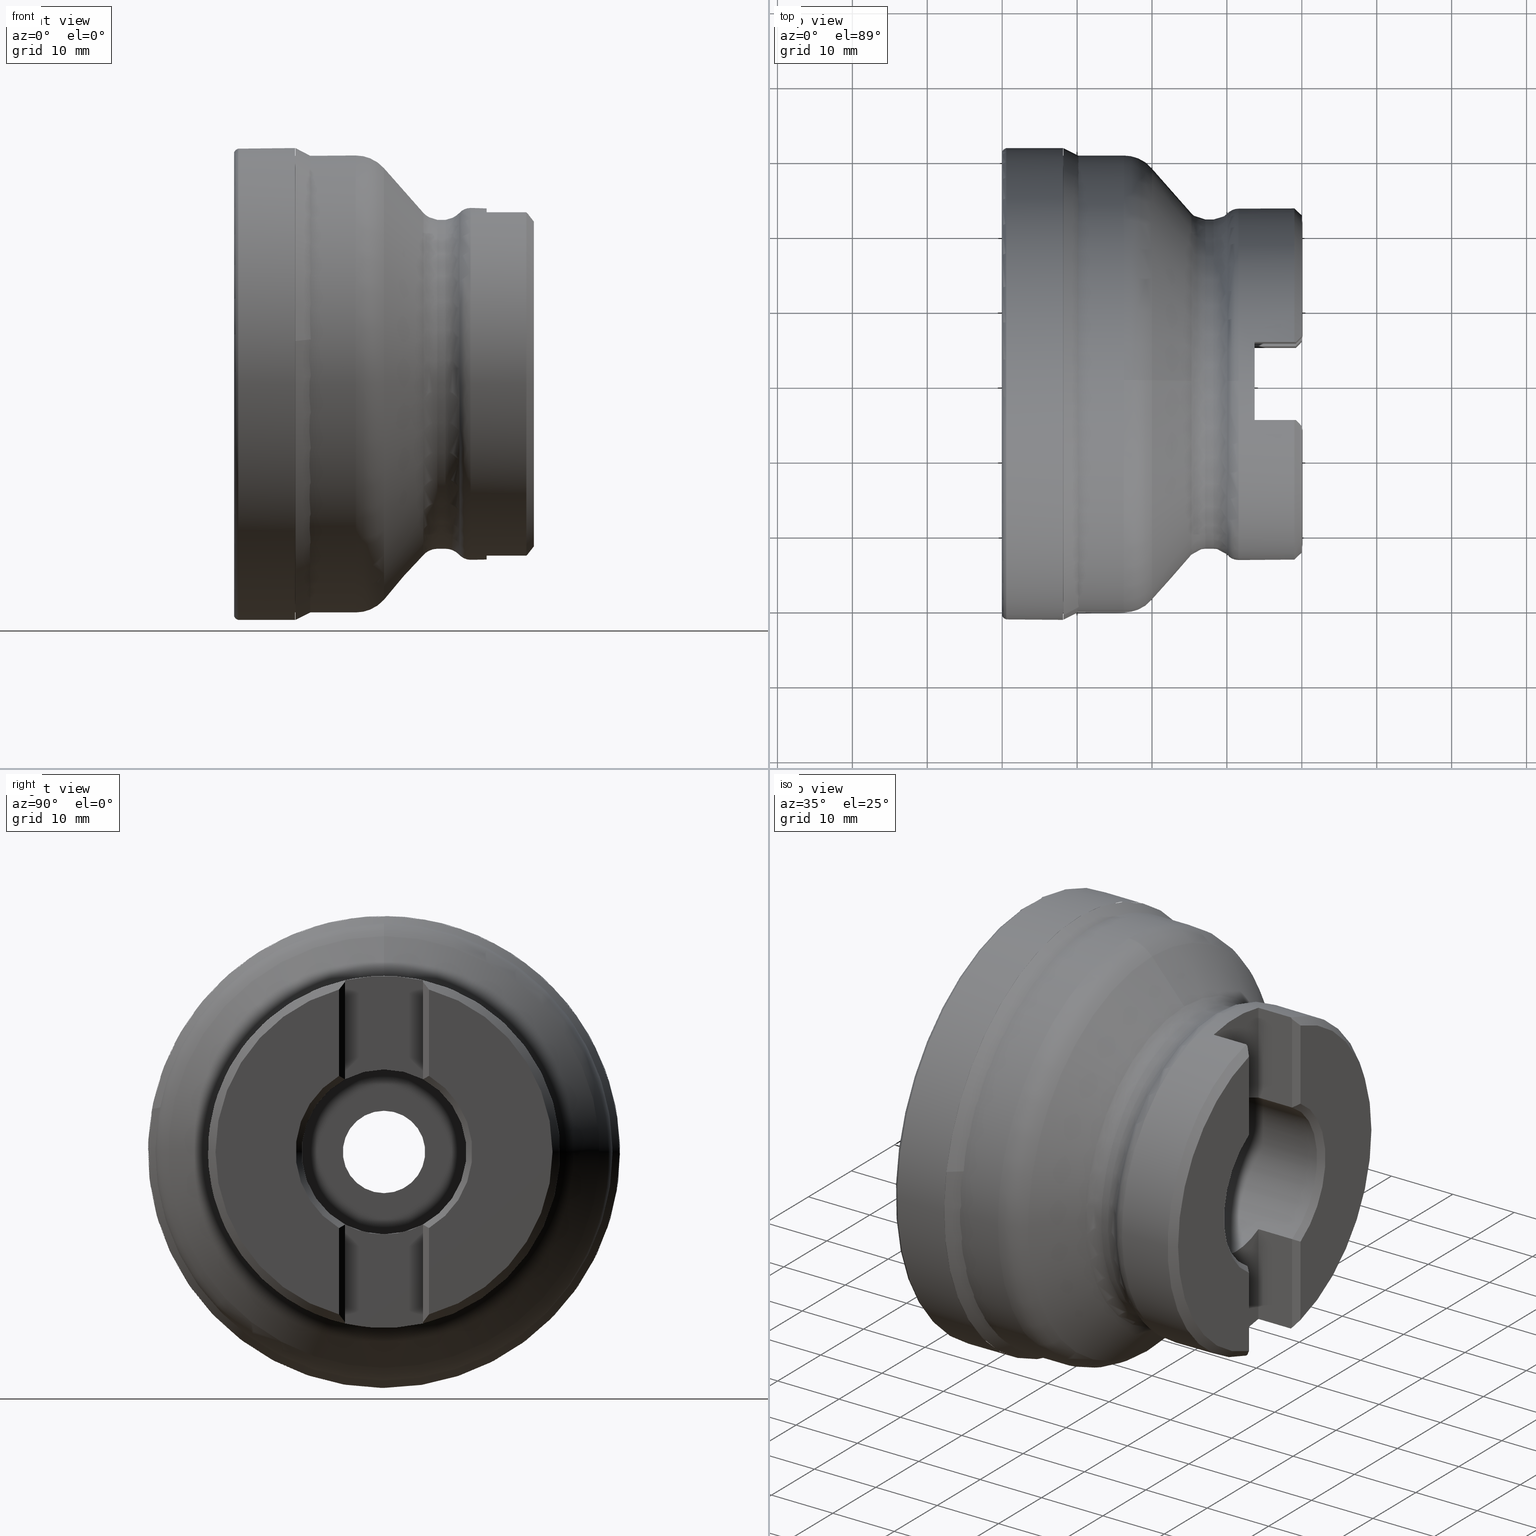
[diagram: canonical four-view strip — front | top / right | iso, engineering-drawing reading convention]
A machine part, canonical four-view strip (front | top / right | iso — engineering-drawing reading convention). The complete STEP part file that produces these views, byte-faithful:
ISO-10303-21;
HEADER;
/* Generated by software containing ST-Developer
 * from STEP Tools, Inc. (www.steptools.com) 
 */
/* OPTION: using custom schema-name function */

FILE_DESCRIPTION(
/* description */ (''),
/* implementation_level */ '2;1');

FILE_NAME(
/* name */ '835M_W_D63-6.stp',
/* time_stamp */ '2017-01-09T09:25:24+01:00',
/* author */ (''),
/* organization */ (''),
/* preprocessor_version */ 'ST-DEVELOPER v11',
/* originating_system */ 'SIEMENS PLM Software NX 7.5',
/* authorisation */ '');

FILE_SCHEMA (('AUTOMOTIVE_DESIGN { 1 0 10303 214 1 1 1 1 }'));
ENDSEC;

DATA;
#10=SHAPE_DEFINITION_REPRESENTATION(#11,#20);
#11=PRODUCT_DEFINITION_SHAPE('','',#12);
#12=PRODUCT_DEFINITION(' ','',#14,#13);
#13=PRODUCT_DEFINITION_CONTEXT('part definition',#19,'design');
#14=PRODUCT_DEFINITION_FORMATION_WITH_SPECIFIED_SOURCE(' ',' ',#16,.NOT_KNOWN.);
#15=PRODUCT_RELATED_PRODUCT_CATEGORY('part','',(#16));
#16=PRODUCT('s.toB8DCi5hn','s.toB8DCi5hn',' ',(#17));
#17=PRODUCT_CONTEXT(' ',#19,'mechanical');
#18=APPLICATION_PROTOCOL_DEFINITION('international standard',
'automotive_design',2001,#19);
#19=APPLICATION_CONTEXT(
'core data for automotive mechanical design processes');
#20=SHAPE_REPRESENTATION('s.toB8DCi5hn-None',(#838,#21,#94),#1479);
#21=MANIFOLD_SOLID_BREP('',#22);
#22=CLOSED_SHELL('',(#137,#138,#139,#140,#141,#142,#143,#144,#145,#146,#147,
#148,#149,#150,#151,#152,#153,#154,#155,#156,#157,#158,#159,#160,#161,#162,
#163,#164,#165,#166,#167,#168,#169,#170,#171,#172,#173,#174));
#23=TOROIDAL_SURFACE('',#896,25.5,5.);
#24=TOROIDAL_SURFACE('',#897,29.5,1.);
#25=TOROIDAL_SURFACE('',#898,24.5,2.5);
#26=TOROIDAL_SURFACE('',#931,23.6009917802107,3.);
#27=TOROIDAL_SURFACE('',#932,14.2585319460245,6.);
#28=TOROIDAL_SURFACE('',#934,24.5,2.5);
#29=TOROIDAL_SURFACE('',#935,21.5,2.);
#30=CYLINDRICAL_SURFACE('',#877,23.5);
#31=CYLINDRICAL_SURFACE('',#880,22.);
#32=CYLINDRICAL_SURFACE('',#886,30.5);
#33=CYLINDRICAL_SURFACE('',#904,11.);
#34=CYLINDRICAL_SURFACE('',#908,11.5);
#35=CYLINDRICAL_SURFACE('',#912,5.5);
#36=CYLINDRICAL_SURFACE('',#916,8.5);
#37=CONICAL_SURFACE('',#869,22.5,45.);
#38=CONICAL_SURFACE('',#883,30.5,48.5763343749973);
#39=CONICAL_SURFACE('',#889,30.5,88.869416603334);
#40=CONICAL_SURFACE('',#895,15.8851145943993,59.6637050270237);
#41=CONICAL_SURFACE('',#917,22.5,45.);
#42=CONICAL_SURFACE('',#918,9.3,45.);
#43=CONICAL_SURFACE('',#926,11.,44.9999999999999);
#44=CONICAL_SURFACE('',#929,11.,44.9999999999999);
#45=PLANE('',#867);
#46=PLANE('',#872);
#47=PLANE('',#892);
#48=PLANE('',#906);
#49=PLANE('',#910);
#50=PLANE('',#914);
#51=PLANE('',#919);
#52=PLANE('',#920);
#53=PLANE('',#921);
#54=PLANE('',#922);
#55=PLANE('',#923);
#56=PLANE('',#924);
#57=PLANE('',#925);
#58=PLANE('',#927);
#59=PLANE('',#928);
#60=PLANE('',#930);
#61=FACE_OUTER_BOUND('',#395,.T.);
#62=FACE_OUTER_BOUND('',#396,.T.);
#63=FACE_OUTER_BOUND('',#397,.T.);
#64=FACE_OUTER_BOUND('',#432,.T.);
#65=FACE_OUTER_BOUND('',#435,.T.);
#66=FACE_OUTER_BOUND('',#436,.T.);
#67=FACE_OUTER_BOUND('',#437,.T.);
#68=FACE_OUTER_BOUND('',#438,.T.);
#69=FACE_OUTER_BOUND('',#439,.T.);
#70=FACE_OUTER_BOUND('',#440,.T.);
#71=FACE_OUTER_BOUND('',#441,.T.);
#72=FACE_OUTER_BOUND('',#442,.T.);
#73=FACE_OUTER_BOUND('',#443,.T.);
#74=FACE_OUTER_BOUND('',#444,.T.);
#75=FACE_OUTER_BOUND('',#445,.T.);
#76=FACE_OUTER_BOUND('',#446,.T.);
#77=PRESENTATION_LAYER_ASSIGNMENT('1','Layer 1',(#94,#21));
#78=STYLED_ITEM('',(#80),#94);
#79=STYLED_ITEM('',(#81),#21);
#80=PRESENTATION_STYLE_ASSIGNMENT((#82));
#81=PRESENTATION_STYLE_ASSIGNMENT((#83));
#82=SURFACE_STYLE_USAGE(.BOTH.,#84);
#83=SURFACE_STYLE_USAGE(.BOTH.,#85);
#84=SURFACE_SIDE_STYLE('',(#86));
#85=SURFACE_SIDE_STYLE('',(#87));
#86=SURFACE_STYLE_FILL_AREA(#88);
#87=SURFACE_STYLE_FILL_AREA(#89);
#88=FILL_AREA_STYLE('',(#90));
#89=FILL_AREA_STYLE('',(#91));
#90=FILL_AREA_STYLE_COLOUR('',#92);
#91=FILL_AREA_STYLE_COLOUR('',#93);
#92=COLOUR_RGB('Medium Midnight',0.501960784313725,0.635278858625162,0.705882352941177);
#93=COLOUR_RGB('Pale Lime',0.8,1.,0.6);
#94=SHELL_BASED_SURFACE_MODEL('',(#95));
#95=OPEN_SHELL('',(#117,#118,#119,#120,#121,#122,#123,#124,#125,#126,#127,
#128,#129,#130,#131,#132,#133,#134,#135,#136));
#96=(
BOUNDED_CURVE()
B_SPLINE_CURVE(3,(#1211,#1212,#1213,#1214),.UNSPECIFIED.,.F.,.F.)
B_SPLINE_CURVE_WITH_KNOTS((4,4),(0.,1.),.UNSPECIFIED.)
CURVE()
GEOMETRIC_REPRESENTATION_ITEM()
RATIONAL_B_SPLINE_CURVE((1.,0.998658931018022,0.998658931018022,1.))
REPRESENTATION_ITEM('')
);
#97=(
BOUNDED_CURVE()
B_SPLINE_CURVE(3,(#1232,#1233,#1234,#1235,#1236,#1237,#1238),.UNSPECIFIED.,
 .T.,.F.)
B_SPLINE_CURVE_WITH_KNOTS((1,3,3,3,1),(-0.5,0.,0.5,1.,1.5),.UNSPECIFIED.)
CURVE()
GEOMETRIC_REPRESENTATION_ITEM()
RATIONAL_B_SPLINE_CURVE((1.,0.333333333333333,0.333333333333333,1.,0.333333333333333,
0.333333333333333,1.))
REPRESENTATION_ITEM('')
);
#98=(
BOUNDED_CURVE()
B_SPLINE_CURVE(3,(#1244,#1245,#1246,#1247,#1248,#1249,#1250),.UNSPECIFIED.,
 .F.,.F.)
B_SPLINE_CURVE_WITH_KNOTS((4,3,4),(0.,0.226379256436926,1.),.UNSPECIFIED.)
CURVE()
GEOMETRIC_REPRESENTATION_ITEM()
RATIONAL_B_SPLINE_CURVE((1.,1.,1.,1.,0.997972138824596,0.997972138824596,
1.))
REPRESENTATION_ITEM('')
);
#99=ELLIPSE('',#843,0.809846083251033,0.8);
#100=ELLIPSE('',#858,0.809846083251033,0.8);
#101=B_SPLINE_CURVE_WITH_KNOTS('',3,(#1189,#1190,#1191,#1192),.UNSPECIFIED.,
 .F.,.F.,(4,4),(0.,1.),.UNSPECIFIED.);
#102=B_SPLINE_CURVE_WITH_KNOTS('',3,(#1200,#1201,#1202,#1203),.UNSPECIFIED.,
 .F.,.F.,(4,4),(0.,1.),.UNSPECIFIED.);
#103=B_SPLINE_CURVE_WITH_KNOTS('',3,(#1258,#1259,#1260,#1261),.UNSPECIFIED.,
 .F.,.F.,(4,4),(0.,1.),.UNSPECIFIED.);
#104=B_SPLINE_CURVE_WITH_KNOTS('',3,(#1269,#1270,#1271,#1272),.UNSPECIFIED.,
 .F.,.F.,(4,4),(0.,1.),.UNSPECIFIED.);
#105=B_SPLINE_CURVE_WITH_KNOTS('',3,(#1299,#1300,#1301,#1302),.UNSPECIFIED.,
 .F.,.F.,(4,4),(0.,1.),.UNSPECIFIED.);
#106=B_SPLINE_CURVE_WITH_KNOTS('',3,(#1305,#1306,#1307,#1308),.UNSPECIFIED.,
 .F.,.F.,(4,4),(0.,1.),.UNSPECIFIED.);
#107=B_SPLINE_CURVE_WITH_KNOTS('',3,(#1309,#1310,#1311,#1312),.UNSPECIFIED.,
 .F.,.F.,(4,4),(0.,1.),.UNSPECIFIED.);
#108=B_SPLINE_CURVE_WITH_KNOTS('',3,(#1314,#1315,#1316,#1317),.UNSPECIFIED.,
 .F.,.F.,(4,4),(0.,1.),.UNSPECIFIED.);
#109=B_SPLINE_CURVE_WITH_KNOTS('',3,(#1416,#1417,#1418,#1419),.UNSPECIFIED.,
 .F.,.F.,(4,4),(0.,1.),.UNSPECIFIED.);
#110=B_SPLINE_CURVE_WITH_KNOTS('',3,(#1421,#1422,#1423,#1424),.UNSPECIFIED.,
 .F.,.F.,(4,4),(0.,1.),.UNSPECIFIED.);
#111=B_SPLINE_CURVE_WITH_KNOTS('',3,(#1425,#1426,#1427,#1428),.UNSPECIFIED.,
 .F.,.F.,(4,4),(0.,1.),.UNSPECIFIED.);
#112=B_SPLINE_CURVE_WITH_KNOTS('',3,(#1430,#1431,#1432,#1433),.UNSPECIFIED.,
 .F.,.F.,(4,4),(0.,1.),.UNSPECIFIED.);
#113=B_SPLINE_CURVE_WITH_KNOTS('',3,(#1450,#1451,#1452,#1453),.UNSPECIFIED.,
 .F.,.F.,(4,4),(0.,1.),.UNSPECIFIED.);
#114=B_SPLINE_CURVE_WITH_KNOTS('',3,(#1455,#1456,#1457,#1458),.UNSPECIFIED.,
 .F.,.F.,(4,4),(0.,1.),.UNSPECIFIED.);
#115=B_SPLINE_CURVE_WITH_KNOTS('',3,(#1461,#1462,#1463,#1464),.UNSPECIFIED.,
 .F.,.F.,(4,4),(0.,1.),.UNSPECIFIED.);
#116=B_SPLINE_CURVE_WITH_KNOTS('',3,(#1466,#1467,#1468,#1469),.UNSPECIFIED.,
 .F.,.F.,(4,4),(0.,1.),.UNSPECIFIED.);
#117=ADVANCED_FACE('',(#271,#272),#175,.F.);
#118=ADVANCED_FACE('',(#273,#274),#176,.F.);
#119=ADVANCED_FACE('',(#275,#276),#177,.F.);
#120=ADVANCED_FACE('',(#277,#278),#178,.F.);
#121=ADVANCED_FACE('',(#279,#280),#179,.F.);
#122=ADVANCED_FACE('',(#281,#282),#180,.F.);
#123=ADVANCED_FACE('',(#283,#284),#181,.F.);
#124=ADVANCED_FACE('',(#285,#286),#182,.F.);
#125=ADVANCED_FACE('',(#287,#288),#183,.F.);
#126=ADVANCED_FACE('',(#289,#290),#184,.F.);
#127=ADVANCED_FACE('',(#291,#292),#185,.F.);
#128=ADVANCED_FACE('',(#293,#294),#186,.F.);
#129=ADVANCED_FACE('',(#295,#296),#187,.F.);
#130=ADVANCED_FACE('',(#297,#298),#188,.F.);
#131=ADVANCED_FACE('',(#299,#300),#189,.F.);
#132=ADVANCED_FACE('',(#301,#302),#190,.F.);
#133=ADVANCED_FACE('',(#303,#304),#191,.F.);
#134=ADVANCED_FACE('',(#305,#306),#192,.F.);
#135=ADVANCED_FACE('',(#307,#308),#193,.F.);
#136=ADVANCED_FACE('',(#309,#310),#194,.F.);
#137=ADVANCED_FACE('',(#61),#45,.F.);
#138=ADVANCED_FACE('',(#62),#37,.T.);
#139=ADVANCED_FACE('',(#63),#46,.F.);
#140=ADVANCED_FACE('',(#311,#312),#30,.T.);
#141=ADVANCED_FACE('',(#313,#314),#31,.T.);
#142=ADVANCED_FACE('',(#315,#316),#38,.T.);
#143=ADVANCED_FACE('',(#317,#318),#32,.T.);
#144=ADVANCED_FACE('',(#319,#320),#39,.F.);
#145=ADVANCED_FACE('',(#321,#322),#47,.F.);
#146=ADVANCED_FACE('',(#323,#324),#40,.F.);
#147=ADVANCED_FACE('',(#325,#326),#23,.T.);
#148=ADVANCED_FACE('',(#327,#328),#24,.T.);
#149=ADVANCED_FACE('',(#329,#330),#25,.F.);
#150=ADVANCED_FACE('',(#331,#332),#33,.F.);
#151=ADVANCED_FACE('',(#333,#334),#48,.T.);
#152=ADVANCED_FACE('',(#335,#336),#34,.F.);
#153=ADVANCED_FACE('',(#337,#338),#49,.T.);
#154=ADVANCED_FACE('',(#339,#340),#35,.F.);
#155=ADVANCED_FACE('',(#341,#342),#50,.T.);
#156=ADVANCED_FACE('',(#343,#344),#36,.F.);
#157=ADVANCED_FACE('',(#64),#41,.T.);
#158=ADVANCED_FACE('',(#345,#346),#42,.F.);
#159=ADVANCED_FACE('',(#65),#51,.F.);
#160=ADVANCED_FACE('',(#66),#52,.F.);
#161=ADVANCED_FACE('',(#67),#53,.F.);
#162=ADVANCED_FACE('',(#68),#54,.F.);
#163=ADVANCED_FACE('',(#69),#55,.F.);
#164=ADVANCED_FACE('',(#70),#56,.F.);
#165=ADVANCED_FACE('',(#71),#57,.F.);
#166=ADVANCED_FACE('',(#72),#43,.F.);
#167=ADVANCED_FACE('',(#73),#58,.F.);
#168=ADVANCED_FACE('',(#74),#59,.F.);
#169=ADVANCED_FACE('',(#75),#44,.F.);
#170=ADVANCED_FACE('',(#76),#60,.F.);
#171=ADVANCED_FACE('',(#347,#348),#26,.T.);
#172=ADVANCED_FACE('',(#349,#350),#27,.F.);
#173=ADVANCED_FACE('',(#351,#352),#28,.F.);
#174=ADVANCED_FACE('',(#353,#354),#29,.T.);
#175=SURFACE_OF_REVOLUTION('',#215,#195);
#176=SURFACE_OF_REVOLUTION('',#101,#196);
#177=SURFACE_OF_REVOLUTION('',#99,#197);
#178=SURFACE_OF_REVOLUTION('',#102,#198);
#179=SURFACE_OF_REVOLUTION('',#216,#199);
#180=SURFACE_OF_REVOLUTION('',#96,#200);
#181=SURFACE_OF_REVOLUTION('',#789,#201);
#182=SURFACE_OF_REVOLUTION('',#217,#202);
#183=SURFACE_OF_REVOLUTION('',#792,#203);
#184=SURFACE_OF_REVOLUTION('',#218,#204);
#185=SURFACE_OF_REVOLUTION('',#794,#205);
#186=SURFACE_OF_REVOLUTION('',#98,#206);
#187=SURFACE_OF_REVOLUTION('',#219,#207);
#188=SURFACE_OF_REVOLUTION('',#103,#208);
#189=SURFACE_OF_REVOLUTION('',#100,#209);
#190=SURFACE_OF_REVOLUTION('',#104,#210);
#191=SURFACE_OF_REVOLUTION('',#220,#211);
#192=SURFACE_OF_REVOLUTION('',#221,#212);
#193=SURFACE_OF_REVOLUTION('',#222,#213);
#194=SURFACE_OF_REVOLUTION('',#804,#214);
#195=AXIS1_PLACEMENT('',#1186,#943);
#196=AXIS1_PLACEMENT('',#1193,#946);
#197=AXIS1_PLACEMENT('',#1197,#951);
#198=AXIS1_PLACEMENT('',#1204,#954);
#199=AXIS1_PLACEMENT('',#1208,#958);
#200=AXIS1_PLACEMENT('',#1215,#961);
#201=AXIS1_PLACEMENT('',#1219,#966);
#202=AXIS1_PLACEMENT('',#1223,#970);
#203=AXIS1_PLACEMENT('',#1227,#975);
#204=AXIS1_PLACEMENT('',#1231,#979);
#205=AXIS1_PLACEMENT('',#1241,#982);
#206=AXIS1_PLACEMENT('',#1251,#985);
#207=AXIS1_PLACEMENT('',#1255,#989);
#208=AXIS1_PLACEMENT('',#1262,#992);
#209=AXIS1_PLACEMENT('',#1266,#997);
#210=AXIS1_PLACEMENT('',#1273,#1000);
#211=AXIS1_PLACEMENT('',#1277,#1004);
#212=AXIS1_PLACEMENT('',#1281,#1008);
#213=AXIS1_PLACEMENT('',#1285,#1012);
#214=AXIS1_PLACEMENT('',#1289,#1017);
#215=LINE('',#1185,#243);
#216=LINE('',#1207,#244);
#217=LINE('',#1222,#245);
#218=LINE('',#1230,#246);
#219=LINE('',#1254,#247);
#220=LINE('',#1276,#248);
#221=LINE('',#1280,#249);
#222=LINE('',#1284,#250);
#223=LINE('',#1293,#251);
#224=LINE('',#1297,#252);
#225=LINE('',#1324,#253);
#226=LINE('',#1328,#254);
#227=LINE('',#1335,#255);
#228=LINE('',#1339,#256);
#229=LINE('',#1340,#257);
#230=LINE('',#1344,#258);
#231=LINE('',#1379,#259);
#232=LINE('',#1384,#260);
#233=LINE('',#1388,#261);
#234=LINE('',#1392,#262);
#235=LINE('',#1436,#263);
#236=LINE('',#1437,#264);
#237=LINE('',#1439,#265);
#238=LINE('',#1440,#266);
#239=LINE('',#1443,#267);
#240=LINE('',#1444,#268);
#241=LINE('',#1446,#269);
#242=LINE('',#1448,#270);
#243=VECTOR('',#942,7.38830001208415);
#244=VECTOR('',#957,1.57579516788934);
#245=VECTOR('',#969,1.64003434106804);
#246=VECTOR('',#978,4.12818988035365);
#247=VECTOR('',#988,7.38830001208415);
#248=VECTOR('',#1003,1.57579516788933);
#249=VECTOR('',#1007,13.188822721936);
#250=VECTOR('',#1011,4.12818988035367);
#251=VECTOR('',#1020,1.);
#252=VECTOR('',#1023,1.);
#253=VECTOR('',#1032,1.);
#254=VECTOR('',#1035,1.);
#255=VECTOR('',#1042,1.);
#256=VECTOR('',#1045,1.);
#257=VECTOR('',#1046,1.);
#258=VECTOR('',#1049,1.);
#259=VECTOR('',#1094,1.);
#260=VECTOR('',#1097,1.);
#261=VECTOR('',#1100,1.);
#262=VECTOR('',#1103,1.);
#263=VECTOR('',#1138,1.);
#264=VECTOR('',#1139,1.);
#265=VECTOR('',#1142,1.);
#266=VECTOR('',#1143,1.);
#267=VECTOR('',#1148,1.);
#268=VECTOR('',#1149,1.);
#269=VECTOR('',#1152,1.);
#270=VECTOR('',#1155,1.);
#271=FACE_BOUND('',#355,.T.);
#272=FACE_BOUND('',#356,.T.);
#273=FACE_BOUND('',#357,.T.);
#274=FACE_BOUND('',#358,.T.);
#275=FACE_BOUND('',#359,.T.);
#276=FACE_BOUND('',#360,.T.);
#277=FACE_BOUND('',#361,.T.);
#278=FACE_BOUND('',#362,.T.);
#279=FACE_BOUND('',#363,.T.);
#280=FACE_BOUND('',#364,.T.);
#281=FACE_BOUND('',#365,.T.);
#282=FACE_BOUND('',#366,.T.);
#283=FACE_BOUND('',#367,.T.);
#284=FACE_BOUND('',#368,.T.);
#285=FACE_BOUND('',#369,.T.);
#286=FACE_BOUND('',#370,.T.);
#287=FACE_BOUND('',#371,.T.);
#288=FACE_BOUND('',#372,.T.);
#289=FACE_BOUND('',#373,.T.);
#290=FACE_BOUND('',#374,.T.);
#291=FACE_BOUND('',#375,.T.);
#292=FACE_BOUND('',#376,.T.);
#293=FACE_BOUND('',#377,.T.);
#294=FACE_BOUND('',#378,.T.);
#295=FACE_BOUND('',#379,.T.);
#296=FACE_BOUND('',#380,.T.);
#297=FACE_BOUND('',#381,.T.);
#298=FACE_BOUND('',#382,.T.);
#299=FACE_BOUND('',#383,.T.);
#300=FACE_BOUND('',#384,.T.);
#301=FACE_BOUND('',#385,.T.);
#302=FACE_BOUND('',#386,.T.);
#303=FACE_BOUND('',#387,.T.);
#304=FACE_BOUND('',#388,.T.);
#305=FACE_BOUND('',#389,.T.);
#306=FACE_BOUND('',#390,.T.);
#307=FACE_BOUND('',#391,.T.);
#308=FACE_BOUND('',#392,.T.);
#309=FACE_BOUND('',#393,.T.);
#310=FACE_BOUND('',#394,.T.);
#311=FACE_BOUND('',#398,.T.);
#312=FACE_BOUND('',#399,.T.);
#313=FACE_BOUND('',#400,.T.);
#314=FACE_BOUND('',#401,.T.);
#315=FACE_BOUND('',#402,.T.);
#316=FACE_BOUND('',#403,.T.);
#317=FACE_BOUND('',#404,.T.);
#318=FACE_BOUND('',#405,.T.);
#319=FACE_BOUND('',#406,.T.);
#320=FACE_BOUND('',#407,.T.);
#321=FACE_BOUND('',#408,.T.);
#322=FACE_BOUND('',#409,.T.);
#323=FACE_BOUND('',#410,.T.);
#324=FACE_BOUND('',#411,.T.);
#325=FACE_BOUND('',#412,.T.);
#326=FACE_BOUND('',#413,.T.);
#327=FACE_BOUND('',#414,.T.);
#328=FACE_BOUND('',#415,.T.);
#329=FACE_BOUND('',#416,.T.);
#330=FACE_BOUND('',#417,.T.);
#331=FACE_BOUND('',#418,.T.);
#332=FACE_BOUND('',#419,.T.);
#333=FACE_BOUND('',#420,.T.);
#334=FACE_BOUND('',#421,.T.);
#335=FACE_BOUND('',#422,.T.);
#336=FACE_BOUND('',#423,.T.);
#337=FACE_BOUND('',#424,.T.);
#338=FACE_BOUND('',#425,.T.);
#339=FACE_BOUND('',#426,.T.);
#340=FACE_BOUND('',#427,.T.);
#341=FACE_BOUND('',#428,.T.);
#342=FACE_BOUND('',#429,.T.);
#343=FACE_BOUND('',#430,.T.);
#344=FACE_BOUND('',#431,.T.);
#345=FACE_BOUND('',#433,.T.);
#346=FACE_BOUND('',#434,.T.);
#347=FACE_BOUND('',#447,.T.);
#348=FACE_BOUND('',#448,.T.);
#349=FACE_BOUND('',#449,.T.);
#350=FACE_BOUND('',#450,.T.);
#351=FACE_BOUND('',#451,.T.);
#352=FACE_BOUND('',#452,.T.);
#353=FACE_BOUND('',#453,.T.);
#354=FACE_BOUND('',#454,.T.);
#355=EDGE_LOOP('',(#455));
#356=EDGE_LOOP('',(#456));
#357=EDGE_LOOP('',(#457));
#358=EDGE_LOOP('',(#458));
#359=EDGE_LOOP('',(#459));
#360=EDGE_LOOP('',(#460));
#361=EDGE_LOOP('',(#461));
#362=EDGE_LOOP('',(#462));
#363=EDGE_LOOP('',(#463));
#364=EDGE_LOOP('',(#464));
#365=EDGE_LOOP('',(#465));
#366=EDGE_LOOP('',(#466));
#367=EDGE_LOOP('',(#467));
#368=EDGE_LOOP('',(#468));
#369=EDGE_LOOP('',(#469));
#370=EDGE_LOOP('',(#470));
#371=EDGE_LOOP('',(#471));
#372=EDGE_LOOP('',(#472));
#373=EDGE_LOOP('',(#473));
#374=EDGE_LOOP('',(#474));
#375=EDGE_LOOP('',(#475));
#376=EDGE_LOOP('',(#476));
#377=EDGE_LOOP('',(#477));
#378=EDGE_LOOP('',(#478));
#379=EDGE_LOOP('',(#479));
#380=EDGE_LOOP('',(#480));
#381=EDGE_LOOP('',(#481));
#382=EDGE_LOOP('',(#482));
#383=EDGE_LOOP('',(#483));
#384=EDGE_LOOP('',(#484));
#385=EDGE_LOOP('',(#485));
#386=EDGE_LOOP('',(#486));
#387=EDGE_LOOP('',(#487));
#388=EDGE_LOOP('',(#488));
#389=EDGE_LOOP('',(#489));
#390=EDGE_LOOP('',(#490));
#391=EDGE_LOOP('',(#491));
#392=EDGE_LOOP('',(#492));
#393=EDGE_LOOP('',(#493));
#394=EDGE_LOOP('',(#494));
#395=EDGE_LOOP('',(#495,#496,#497,#498));
#396=EDGE_LOOP('',(#499,#500,#501,#502,#503,#504));
#397=EDGE_LOOP('',(#505,#506,#507,#508));
#398=EDGE_LOOP('',(#509));
#399=EDGE_LOOP('',(#510,#511,#512,#513,#514,#515,#516,#517));
#400=EDGE_LOOP('',(#518));
#401=EDGE_LOOP('',(#519));
#402=EDGE_LOOP('',(#520));
#403=EDGE_LOOP('',(#521));
#404=EDGE_LOOP('',(#522));
#405=EDGE_LOOP('',(#523));
#406=EDGE_LOOP('',(#524));
#407=EDGE_LOOP('',(#525));
#408=EDGE_LOOP('',(#526));
#409=EDGE_LOOP('',(#527));
#410=EDGE_LOOP('',(#528));
#411=EDGE_LOOP('',(#529));
#412=EDGE_LOOP('',(#530));
#413=EDGE_LOOP('',(#531));
#414=EDGE_LOOP('',(#532));
#415=EDGE_LOOP('',(#533));
#416=EDGE_LOOP('',(#534));
#417=EDGE_LOOP('',(#535));
#418=EDGE_LOOP('',(#536,#537,#538,#539,#540,#541,#542,#543));
#419=EDGE_LOOP('',(#544));
#420=EDGE_LOOP('',(#545));
#421=EDGE_LOOP('',(#546));
#422=EDGE_LOOP('',(#547));
#423=EDGE_LOOP('',(#548));
#424=EDGE_LOOP('',(#549));
#425=EDGE_LOOP('',(#550));
#426=EDGE_LOOP('',(#551));
#427=EDGE_LOOP('',(#552));
#428=EDGE_LOOP('',(#553));
#429=EDGE_LOOP('',(#554));
#430=EDGE_LOOP('',(#555));
#431=EDGE_LOOP('',(#556));
#432=EDGE_LOOP('',(#557,#558,#559,#560,#561,#562));
#433=EDGE_LOOP('',(#563));
#434=EDGE_LOOP('',(#564));
#435=EDGE_LOOP('',(#565,#566,#567,#568,#569));
#436=EDGE_LOOP('',(#570,#571,#572,#573,#574));
#437=EDGE_LOOP('',(#575,#576,#577,#578));
#438=EDGE_LOOP('',(#579,#580,#581,#582));
#439=EDGE_LOOP('',(#583,#584,#585,#586,#587));
#440=EDGE_LOOP('',(#588,#589,#590,#591,#592));
#441=EDGE_LOOP('',(#593,#594,#595,#596));
#442=EDGE_LOOP('',(#597,#598,#599,#600));
#443=EDGE_LOOP('',(#601,#602,#603,#604));
#444=EDGE_LOOP('',(#605,#606,#607,#608));
#445=EDGE_LOOP('',(#609,#610,#611,#612));
#446=EDGE_LOOP('',(#613,#614,#615,#616));
#447=EDGE_LOOP('',(#617));
#448=EDGE_LOOP('',(#618));
#449=EDGE_LOOP('',(#619));
#450=EDGE_LOOP('',(#620));
#451=EDGE_LOOP('',(#621));
#452=EDGE_LOOP('',(#622));
#453=EDGE_LOOP('',(#623));
#454=EDGE_LOOP('',(#624));
#455=ORIENTED_EDGE('',*,*,#695,.T.);
#456=ORIENTED_EDGE('',*,*,#696,.F.);
#457=ORIENTED_EDGE('',*,*,#697,.T.);
#458=ORIENTED_EDGE('',*,*,#695,.F.);
#459=ORIENTED_EDGE('',*,*,#698,.T.);
#460=ORIENTED_EDGE('',*,*,#697,.F.);
#461=ORIENTED_EDGE('',*,*,#699,.T.);
#462=ORIENTED_EDGE('',*,*,#698,.F.);
#463=ORIENTED_EDGE('',*,*,#700,.T.);
#464=ORIENTED_EDGE('',*,*,#699,.F.);
#465=ORIENTED_EDGE('',*,*,#701,.T.);
#466=ORIENTED_EDGE('',*,*,#700,.F.);
#467=ORIENTED_EDGE('',*,*,#702,.T.);
#468=ORIENTED_EDGE('',*,*,#701,.F.);
#469=ORIENTED_EDGE('',*,*,#703,.T.);
#470=ORIENTED_EDGE('',*,*,#702,.F.);
#471=ORIENTED_EDGE('',*,*,#704,.T.);
#472=ORIENTED_EDGE('',*,*,#703,.F.);
#473=ORIENTED_EDGE('',*,*,#705,.T.);
#474=ORIENTED_EDGE('',*,*,#704,.F.);
#475=ORIENTED_EDGE('',*,*,#706,.T.);
#476=ORIENTED_EDGE('',*,*,#705,.F.);
#477=ORIENTED_EDGE('',*,*,#707,.T.);
#478=ORIENTED_EDGE('',*,*,#706,.F.);
#479=ORIENTED_EDGE('',*,*,#708,.T.);
#480=ORIENTED_EDGE('',*,*,#707,.F.);
#481=ORIENTED_EDGE('',*,*,#709,.T.);
#482=ORIENTED_EDGE('',*,*,#708,.F.);
#483=ORIENTED_EDGE('',*,*,#710,.T.);
#484=ORIENTED_EDGE('',*,*,#709,.F.);
#485=ORIENTED_EDGE('',*,*,#711,.T.);
#486=ORIENTED_EDGE('',*,*,#710,.F.);
#487=ORIENTED_EDGE('',*,*,#712,.T.);
#488=ORIENTED_EDGE('',*,*,#711,.F.);
#489=ORIENTED_EDGE('',*,*,#713,.T.);
#490=ORIENTED_EDGE('',*,*,#712,.F.);
#491=ORIENTED_EDGE('',*,*,#714,.T.);
#492=ORIENTED_EDGE('',*,*,#713,.F.);
#493=ORIENTED_EDGE('',*,*,#715,.T.);
#494=ORIENTED_EDGE('',*,*,#714,.F.);
#495=ORIENTED_EDGE('',*,*,#716,.T.);
#496=ORIENTED_EDGE('',*,*,#717,.T.);
#497=ORIENTED_EDGE('',*,*,#718,.T.);
#498=ORIENTED_EDGE('',*,*,#719,.T.);
#499=ORIENTED_EDGE('',*,*,#720,.F.);
#500=ORIENTED_EDGE('',*,*,#721,.T.);
#501=ORIENTED_EDGE('',*,*,#716,.F.);
#502=ORIENTED_EDGE('',*,*,#722,.T.);
#503=ORIENTED_EDGE('',*,*,#723,.F.);
#504=ORIENTED_EDGE('',*,*,#724,.F.);
#505=ORIENTED_EDGE('',*,*,#725,.T.);
#506=ORIENTED_EDGE('',*,*,#726,.T.);
#507=ORIENTED_EDGE('',*,*,#727,.T.);
#508=ORIENTED_EDGE('',*,*,#728,.T.);
#509=ORIENTED_EDGE('',*,*,#729,.T.);
#510=ORIENTED_EDGE('',*,*,#730,.T.);
#511=ORIENTED_EDGE('',*,*,#731,.T.);
#512=ORIENTED_EDGE('',*,*,#732,.T.);
#513=ORIENTED_EDGE('',*,*,#733,.T.);
#514=ORIENTED_EDGE('',*,*,#724,.T.);
#515=ORIENTED_EDGE('',*,*,#734,.T.);
#516=ORIENTED_EDGE('',*,*,#735,.T.);
#517=ORIENTED_EDGE('',*,*,#736,.T.);
#518=ORIENTED_EDGE('',*,*,#737,.T.);
#519=ORIENTED_EDGE('',*,*,#738,.T.);
#520=ORIENTED_EDGE('',*,*,#739,.T.);
#521=ORIENTED_EDGE('',*,*,#740,.T.);
#522=ORIENTED_EDGE('',*,*,#741,.T.);
#523=ORIENTED_EDGE('',*,*,#742,.T.);
#524=ORIENTED_EDGE('',*,*,#743,.T.);
#525=ORIENTED_EDGE('',*,*,#744,.T.);
#526=ORIENTED_EDGE('',*,*,#745,.T.);
#527=ORIENTED_EDGE('',*,*,#746,.T.);
#528=ORIENTED_EDGE('',*,*,#747,.T.);
#529=ORIENTED_EDGE('',*,*,#748,.T.);
#530=ORIENTED_EDGE('',*,*,#742,.F.);
#531=ORIENTED_EDGE('',*,*,#740,.F.);
#532=ORIENTED_EDGE('',*,*,#741,.F.);
#533=ORIENTED_EDGE('',*,*,#744,.F.);
#534=ORIENTED_EDGE('',*,*,#739,.F.);
#535=ORIENTED_EDGE('',*,*,#738,.F.);
#536=ORIENTED_EDGE('',*,*,#749,.F.);
#537=ORIENTED_EDGE('',*,*,#750,.T.);
#538=ORIENTED_EDGE('',*,*,#751,.F.);
#539=ORIENTED_EDGE('',*,*,#752,.F.);
#540=ORIENTED_EDGE('',*,*,#753,.F.);
#541=ORIENTED_EDGE('',*,*,#754,.T.);
#542=ORIENTED_EDGE('',*,*,#755,.F.);
#543=ORIENTED_EDGE('',*,*,#756,.F.);
#544=ORIENTED_EDGE('',*,*,#757,.F.);
#545=ORIENTED_EDGE('',*,*,#757,.T.);
#546=ORIENTED_EDGE('',*,*,#758,.F.);
#547=ORIENTED_EDGE('',*,*,#758,.T.);
#548=ORIENTED_EDGE('',*,*,#759,.F.);
#549=ORIENTED_EDGE('',*,*,#760,.T.);
#550=ORIENTED_EDGE('',*,*,#759,.T.);
#551=ORIENTED_EDGE('',*,*,#761,.F.);
#552=ORIENTED_EDGE('',*,*,#760,.F.);
#553=ORIENTED_EDGE('',*,*,#761,.T.);
#554=ORIENTED_EDGE('',*,*,#762,.F.);
#555=ORIENTED_EDGE('',*,*,#763,.T.);
#556=ORIENTED_EDGE('',*,*,#762,.T.);
#557=ORIENTED_EDGE('',*,*,#727,.F.);
#558=ORIENTED_EDGE('',*,*,#764,.T.);
#559=ORIENTED_EDGE('',*,*,#765,.F.);
#560=ORIENTED_EDGE('',*,*,#730,.F.);
#561=ORIENTED_EDGE('',*,*,#766,.F.);
#562=ORIENTED_EDGE('',*,*,#767,.T.);
#563=ORIENTED_EDGE('',*,*,#763,.F.);
#564=ORIENTED_EDGE('',*,*,#746,.F.);
#565=ORIENTED_EDGE('',*,*,#751,.T.);
#566=ORIENTED_EDGE('',*,*,#768,.T.);
#567=ORIENTED_EDGE('',*,*,#766,.T.);
#568=ORIENTED_EDGE('',*,*,#736,.F.);
#569=ORIENTED_EDGE('',*,*,#769,.T.);
#570=ORIENTED_EDGE('',*,*,#723,.T.);
#571=ORIENTED_EDGE('',*,*,#770,.T.);
#572=ORIENTED_EDGE('',*,*,#753,.T.);
#573=ORIENTED_EDGE('',*,*,#771,.F.);
#574=ORIENTED_EDGE('',*,*,#734,.F.);
#575=ORIENTED_EDGE('',*,*,#735,.F.);
#576=ORIENTED_EDGE('',*,*,#771,.T.);
#577=ORIENTED_EDGE('',*,*,#752,.T.);
#578=ORIENTED_EDGE('',*,*,#769,.F.);
#579=ORIENTED_EDGE('',*,*,#772,.F.);
#580=ORIENTED_EDGE('',*,*,#756,.T.);
#581=ORIENTED_EDGE('',*,*,#773,.T.);
#582=ORIENTED_EDGE('',*,*,#732,.F.);
#583=ORIENTED_EDGE('',*,*,#755,.T.);
#584=ORIENTED_EDGE('',*,*,#774,.T.);
#585=ORIENTED_EDGE('',*,*,#720,.T.);
#586=ORIENTED_EDGE('',*,*,#733,.F.);
#587=ORIENTED_EDGE('',*,*,#773,.F.);
#588=ORIENTED_EDGE('',*,*,#765,.T.);
#589=ORIENTED_EDGE('',*,*,#775,.T.);
#590=ORIENTED_EDGE('',*,*,#749,.T.);
#591=ORIENTED_EDGE('',*,*,#772,.T.);
#592=ORIENTED_EDGE('',*,*,#731,.F.);
#593=ORIENTED_EDGE('',*,*,#722,.F.);
#594=ORIENTED_EDGE('',*,*,#719,.F.);
#595=ORIENTED_EDGE('',*,*,#776,.F.);
#596=ORIENTED_EDGE('',*,*,#770,.F.);
#597=ORIENTED_EDGE('',*,*,#776,.T.);
#598=ORIENTED_EDGE('',*,*,#718,.F.);
#599=ORIENTED_EDGE('',*,*,#777,.F.);
#600=ORIENTED_EDGE('',*,*,#754,.F.);
#601=ORIENTED_EDGE('',*,*,#777,.T.);
#602=ORIENTED_EDGE('',*,*,#717,.F.);
#603=ORIENTED_EDGE('',*,*,#721,.F.);
#604=ORIENTED_EDGE('',*,*,#774,.F.);
#605=ORIENTED_EDGE('',*,*,#768,.F.);
#606=ORIENTED_EDGE('',*,*,#778,.F.);
#607=ORIENTED_EDGE('',*,*,#728,.F.);
#608=ORIENTED_EDGE('',*,*,#767,.F.);
#609=ORIENTED_EDGE('',*,*,#778,.T.);
#610=ORIENTED_EDGE('',*,*,#750,.F.);
#611=ORIENTED_EDGE('',*,*,#779,.F.);
#612=ORIENTED_EDGE('',*,*,#725,.F.);
#613=ORIENTED_EDGE('',*,*,#779,.T.);
#614=ORIENTED_EDGE('',*,*,#775,.F.);
#615=ORIENTED_EDGE('',*,*,#764,.F.);
#616=ORIENTED_EDGE('',*,*,#726,.F.);
#617=ORIENTED_EDGE('',*,*,#743,.F.);
#618=ORIENTED_EDGE('',*,*,#748,.F.);
#619=ORIENTED_EDGE('',*,*,#745,.F.);
#620=ORIENTED_EDGE('',*,*,#747,.F.);
#621=ORIENTED_EDGE('',*,*,#780,.T.);
#622=ORIENTED_EDGE('',*,*,#737,.F.);
#623=ORIENTED_EDGE('',*,*,#780,.F.);
#624=ORIENTED_EDGE('',*,*,#729,.F.);
#625=VERTEX_POINT('',#1182);
#626=VERTEX_POINT('',#1184);
#627=VERTEX_POINT('',#1188);
#628=VERTEX_POINT('',#1195);
#629=VERTEX_POINT('',#1199);
#630=VERTEX_POINT('',#1206);
#631=VERTEX_POINT('',#1210);
#632=VERTEX_POINT('',#1217);
#633=VERTEX_POINT('',#1221);
#634=VERTEX_POINT('',#1225);
#635=VERTEX_POINT('',#1229);
#636=VERTEX_POINT('',#1239);
#637=VERTEX_POINT('',#1243);
#638=VERTEX_POINT('',#1253);
#639=VERTEX_POINT('',#1257);
#640=VERTEX_POINT('',#1264);
#641=VERTEX_POINT('',#1268);
#642=VERTEX_POINT('',#1275);
#643=VERTEX_POINT('',#1279);
#644=VERTEX_POINT('',#1283);
#645=VERTEX_POINT('',#1287);
#646=VERTEX_POINT('',#1291);
#647=VERTEX_POINT('',#1292);
#648=VERTEX_POINT('',#1294);
#649=VERTEX_POINT('',#1296);
#650=VERTEX_POINT('',#1303);
#651=VERTEX_POINT('',#1304);
#652=VERTEX_POINT('',#1313);
#653=VERTEX_POINT('',#1318);
#654=VERTEX_POINT('',#1322);
#655=VERTEX_POINT('',#1323);
#656=VERTEX_POINT('',#1325);
#657=VERTEX_POINT('',#1327);
#658=VERTEX_POINT('',#1331);
#659=VERTEX_POINT('',#1333);
#660=VERTEX_POINT('',#1334);
#661=VERTEX_POINT('',#1336);
#662=VERTEX_POINT('',#1338);
#663=VERTEX_POINT('',#1341);
#664=VERTEX_POINT('',#1343);
#665=VERTEX_POINT('',#1347);
#666=VERTEX_POINT('',#1349);
#667=VERTEX_POINT('',#1352);
#668=VERTEX_POINT('',#1354);
#669=VERTEX_POINT('',#1357);
#670=VERTEX_POINT('',#1359);
#671=VERTEX_POINT('',#1362);
#672=VERTEX_POINT('',#1364);
#673=VERTEX_POINT('',#1367);
#674=VERTEX_POINT('',#1369);
#675=VERTEX_POINT('',#1372);
#676=VERTEX_POINT('',#1374);
#677=VERTEX_POINT('',#1380);
#678=VERTEX_POINT('',#1381);
#679=VERTEX_POINT('',#1383);
#680=VERTEX_POINT('',#1385);
#681=VERTEX_POINT('',#1387);
#682=VERTEX_POINT('',#1389);
#683=VERTEX_POINT('',#1391);
#684=VERTEX_POINT('',#1393);
#685=VERTEX_POINT('',#1396);
#686=VERTEX_POINT('',#1399);
#687=VERTEX_POINT('',#1402);
#688=VERTEX_POINT('',#1405);
#689=VERTEX_POINT('',#1408);
#690=VERTEX_POINT('',#1411);
#691=VERTEX_POINT('',#1414);
#692=VERTEX_POINT('',#1420);
#693=VERTEX_POINT('',#1429);
#694=VERTEX_POINT('',#1475);
#695=EDGE_CURVE('',#625,#625,#781,.T.);
#696=EDGE_CURVE('',#626,#626,#782,.T.);
#697=EDGE_CURVE('',#627,#627,#783,.T.);
#698=EDGE_CURVE('',#628,#628,#784,.T.);
#699=EDGE_CURVE('',#629,#629,#785,.T.);
#700=EDGE_CURVE('',#630,#630,#786,.T.);
#701=EDGE_CURVE('',#631,#631,#787,.T.);
#702=EDGE_CURVE('',#632,#632,#788,.T.);
#703=EDGE_CURVE('',#633,#633,#790,.T.);
#704=EDGE_CURVE('',#634,#634,#791,.T.);
#705=EDGE_CURVE('',#635,#635,#793,.T.);
#706=EDGE_CURVE('',#636,#636,#97,.T.);
#707=EDGE_CURVE('',#637,#637,#795,.T.);
#708=EDGE_CURVE('',#638,#638,#796,.T.);
#709=EDGE_CURVE('',#639,#639,#797,.T.);
#710=EDGE_CURVE('',#640,#640,#798,.T.);
#711=EDGE_CURVE('',#641,#641,#799,.T.);
#712=EDGE_CURVE('',#642,#642,#800,.T.);
#713=EDGE_CURVE('',#643,#643,#801,.T.);
#714=EDGE_CURVE('',#644,#644,#802,.T.);
#715=EDGE_CURVE('',#645,#645,#803,.T.);
#716=EDGE_CURVE('',#646,#647,#805,.T.);
#717=EDGE_CURVE('',#647,#648,#223,.T.);
#718=EDGE_CURVE('',#648,#649,#806,.T.);
#719=EDGE_CURVE('',#649,#646,#224,.T.);
#720=EDGE_CURVE('',#650,#651,#105,.T.);
#721=EDGE_CURVE('',#650,#647,#106,.T.);
#722=EDGE_CURVE('',#646,#652,#107,.T.);
#723=EDGE_CURVE('',#653,#652,#108,.T.);
#724=EDGE_CURVE('',#651,#653,#807,.T.);
#725=EDGE_CURVE('',#654,#655,#808,.T.);
#726=EDGE_CURVE('',#655,#656,#225,.T.);
#727=EDGE_CURVE('',#656,#657,#809,.T.);
#728=EDGE_CURVE('',#657,#654,#226,.T.);
#729=EDGE_CURVE('',#658,#658,#810,.T.);
#730=EDGE_CURVE('',#659,#660,#811,.T.);
#731=EDGE_CURVE('',#660,#661,#227,.T.);
#732=EDGE_CURVE('',#661,#662,#812,.T.);
#733=EDGE_CURVE('',#662,#651,#228,.T.);
#734=EDGE_CURVE('',#653,#663,#229,.T.);
#735=EDGE_CURVE('',#663,#664,#813,.T.);
#736=EDGE_CURVE('',#664,#659,#230,.T.);
#737=EDGE_CURVE('',#665,#665,#814,.T.);
#738=EDGE_CURVE('',#666,#666,#815,.T.);
#739=EDGE_CURVE('',#667,#667,#816,.T.);
#740=EDGE_CURVE('',#668,#668,#817,.T.);
#741=EDGE_CURVE('',#669,#669,#818,.T.);
#742=EDGE_CURVE('',#670,#670,#819,.T.);
#743=EDGE_CURVE('',#671,#671,#820,.T.);
#744=EDGE_CURVE('',#672,#672,#821,.T.);
#745=EDGE_CURVE('',#673,#673,#822,.T.);
#746=EDGE_CURVE('',#674,#674,#823,.T.);
#747=EDGE_CURVE('',#675,#675,#824,.T.);
#748=EDGE_CURVE('',#676,#676,#825,.T.);
#749=EDGE_CURVE('',#677,#678,#231,.T.);
#750=EDGE_CURVE('',#677,#679,#826,.T.);
#751=EDGE_CURVE('',#680,#679,#232,.T.);
#752=EDGE_CURVE('',#681,#680,#827,.T.);
#753=EDGE_CURVE('',#682,#681,#233,.T.);
#754=EDGE_CURVE('',#682,#683,#828,.T.);
#755=EDGE_CURVE('',#684,#683,#234,.T.);
#756=EDGE_CURVE('',#678,#684,#829,.T.);
#757=EDGE_CURVE('',#685,#685,#830,.T.);
#758=EDGE_CURVE('',#686,#686,#831,.T.);
#759=EDGE_CURVE('',#687,#687,#832,.T.);
#760=EDGE_CURVE('',#688,#688,#833,.T.);
#761=EDGE_CURVE('',#689,#689,#834,.T.);
#762=EDGE_CURVE('',#690,#690,#835,.T.);
#763=EDGE_CURVE('',#691,#691,#836,.T.);
#764=EDGE_CURVE('',#656,#692,#109,.T.);
#765=EDGE_CURVE('',#660,#692,#110,.T.);
#766=EDGE_CURVE('',#693,#659,#111,.T.);
#767=EDGE_CURVE('',#693,#657,#112,.T.);
#768=EDGE_CURVE('',#679,#693,#235,.T.);
#769=EDGE_CURVE('',#664,#680,#236,.T.);
#770=EDGE_CURVE('',#652,#682,#237,.T.);
#771=EDGE_CURVE('',#663,#681,#238,.T.);
#772=EDGE_CURVE('',#678,#661,#239,.T.);
#773=EDGE_CURVE('',#684,#662,#240,.T.);
#774=EDGE_CURVE('',#683,#650,#241,.T.);
#775=EDGE_CURVE('',#692,#677,#242,.T.);
#776=EDGE_CURVE('',#682,#649,#113,.T.);
#777=EDGE_CURVE('',#683,#648,#114,.T.);
#778=EDGE_CURVE('',#654,#679,#115,.T.);
#779=EDGE_CURVE('',#655,#677,#116,.T.);
#780=EDGE_CURVE('',#694,#694,#837,.T.);
#781=CIRCLE('',#839,31.4996389427764);
#782=CIRCLE('',#840,31.4896915876379);
#783=CIRCLE('',#841,31.5000000000001);
#784=CIRCLE('',#842,31.0295608110903);
#785=CIRCLE('',#844,30.7245104967286);
#786=CIRCLE('',#845,29.1825409817097);
#787=CIRCLE('',#846,29.1511817624747);
#788=CIRCLE('',#847,28.9962174161599);
#789=CIRCLE('',#848,0.25);
#790=CIRCLE('',#849,27.6286839557707);
#791=CIRCLE('',#850,27.4805954419201);
#792=CIRCLE('',#851,0.2);
#793=CIRCLE('',#852,23.4358849636218);
#794=CIRCLE('',#853,0.5);
#795=CIRCLE('',#854,23.3135326610782);
#796=CIRCLE('',#855,17.7139198547695);
#797=CIRCLE('',#856,17.5667463366145);
#798=CIRCLE('',#857,17.4202021900744);
#799=CIRCLE('',#859,17.580542534425);
#800=CIRCLE('',#860,18.3682050154893);
#801=CIRCLE('',#861,29.6379312073546);
#802=CIRCLE('',#862,31.459326904057);
#803=CIRCLE('',#863,31.490378770978);
#804=CIRCLE('',#864,0.5);
#805=CIRCLE('',#865,22.5);
#806=CIRCLE('',#866,11.8);
#807=CIRCLE('',#868,23.5);
#808=CIRCLE('',#870,11.8);
#809=CIRCLE('',#871,22.5);
#810=CIRCLE('',#873,23.5);
#811=CIRCLE('',#874,23.5);
#812=CIRCLE('',#875,23.5);
#813=CIRCLE('',#876,23.5);
#814=CIRCLE('',#878,22.);
#815=CIRCLE('',#879,22.);
#816=CIRCLE('',#881,22.8459459072829);
#817=CIRCLE('',#882,28.8081081854342);
#818=CIRCLE('',#884,30.5);
#819=CIRCLE('',#885,30.5);
#820=CIRCLE('',#887,23.5417984134956);
#821=CIRCLE('',#888,29.4802688777616);
#822=CIRCLE('',#890,14.2585319460245);
#823=CIRCLE('',#891,9.3);
#824=CIRCLE('',#893,17.2889786757221);
#825=CIRCLE('',#894,22.0857684153619);
#826=CIRCLE('',#899,11.);
#827=CIRCLE('',#900,11.);
#828=CIRCLE('',#901,11.);
#829=CIRCLE('',#902,11.);
#830=CIRCLE('',#903,11.);
#831=CIRCLE('',#905,11.5);
#832=CIRCLE('',#907,11.5);
#833=CIRCLE('',#909,5.5);
#834=CIRCLE('',#911,5.5);
#835=CIRCLE('',#913,8.5);
#836=CIRCLE('',#915,8.5);
#837=CIRCLE('',#933,22.8333333333334);
#838=AXIS2_PLACEMENT_3D('',#1180,#936,#937);
#839=AXIS2_PLACEMENT_3D('',#1181,#938,#939);
#840=AXIS2_PLACEMENT_3D('',#1183,#940,#941);
#841=AXIS2_PLACEMENT_3D('',#1187,#944,#945);
#842=AXIS2_PLACEMENT_3D('',#1194,#947,#948);
#843=AXIS2_PLACEMENT_3D('',#1196,#949,#950);
#844=AXIS2_PLACEMENT_3D('',#1198,#952,#953);
#845=AXIS2_PLACEMENT_3D('',#1205,#955,#956);
#846=AXIS2_PLACEMENT_3D('',#1209,#959,#960);
#847=AXIS2_PLACEMENT_3D('',#1216,#962,#963);
#848=AXIS2_PLACEMENT_3D('',#1218,#964,#965);
#849=AXIS2_PLACEMENT_3D('',#1220,#967,#968);
#850=AXIS2_PLACEMENT_3D('',#1224,#971,#972);
#851=AXIS2_PLACEMENT_3D('',#1226,#973,#974);
#852=AXIS2_PLACEMENT_3D('',#1228,#976,#977);
#853=AXIS2_PLACEMENT_3D('',#1240,#980,#981);
#854=AXIS2_PLACEMENT_3D('',#1242,#983,#984);
#855=AXIS2_PLACEMENT_3D('',#1252,#986,#987);
#856=AXIS2_PLACEMENT_3D('',#1256,#990,#991);
#857=AXIS2_PLACEMENT_3D('',#1263,#993,#994);
#858=AXIS2_PLACEMENT_3D('',#1265,#995,#996);
#859=AXIS2_PLACEMENT_3D('',#1267,#998,#999);
#860=AXIS2_PLACEMENT_3D('',#1274,#1001,#1002);
#861=AXIS2_PLACEMENT_3D('',#1278,#1005,#1006);
#862=AXIS2_PLACEMENT_3D('',#1282,#1009,#1010);
#863=AXIS2_PLACEMENT_3D('',#1286,#1013,#1014);
#864=AXIS2_PLACEMENT_3D('',#1288,#1015,#1016);
#865=AXIS2_PLACEMENT_3D('',#1290,#1018,#1019);
#866=AXIS2_PLACEMENT_3D('',#1295,#1021,#1022);
#867=AXIS2_PLACEMENT_3D('',#1298,#1024,#1025);
#868=AXIS2_PLACEMENT_3D('',#1319,#1026,#1027);
#869=AXIS2_PLACEMENT_3D('',#1320,#1028,#1029);
#870=AXIS2_PLACEMENT_3D('',#1321,#1030,#1031);
#871=AXIS2_PLACEMENT_3D('',#1326,#1033,#1034);
#872=AXIS2_PLACEMENT_3D('',#1329,#1036,#1037);
#873=AXIS2_PLACEMENT_3D('',#1330,#1038,#1039);
#874=AXIS2_PLACEMENT_3D('',#1332,#1040,#1041);
#875=AXIS2_PLACEMENT_3D('',#1337,#1043,#1044);
#876=AXIS2_PLACEMENT_3D('',#1342,#1047,#1048);
#877=AXIS2_PLACEMENT_3D('',#1345,#1050,#1051);
#878=AXIS2_PLACEMENT_3D('',#1346,#1052,#1053);
#879=AXIS2_PLACEMENT_3D('',#1348,#1054,#1055);
#880=AXIS2_PLACEMENT_3D('',#1350,#1056,#1057);
#881=AXIS2_PLACEMENT_3D('',#1351,#1058,#1059);
#882=AXIS2_PLACEMENT_3D('',#1353,#1060,#1061);
#883=AXIS2_PLACEMENT_3D('',#1355,#1062,#1063);
#884=AXIS2_PLACEMENT_3D('',#1356,#1064,#1065);
#885=AXIS2_PLACEMENT_3D('',#1358,#1066,#1067);
#886=AXIS2_PLACEMENT_3D('',#1360,#1068,#1069);
#887=AXIS2_PLACEMENT_3D('',#1361,#1070,#1071);
#888=AXIS2_PLACEMENT_3D('',#1363,#1072,#1073);
#889=AXIS2_PLACEMENT_3D('',#1365,#1074,#1075);
#890=AXIS2_PLACEMENT_3D('',#1366,#1076,#1077);
#891=AXIS2_PLACEMENT_3D('',#1368,#1078,#1079);
#892=AXIS2_PLACEMENT_3D('',#1370,#1080,#1081);
#893=AXIS2_PLACEMENT_3D('',#1371,#1082,#1083);
#894=AXIS2_PLACEMENT_3D('',#1373,#1084,#1085);
#895=AXIS2_PLACEMENT_3D('',#1375,#1086,#1087);
#896=AXIS2_PLACEMENT_3D('',#1376,#1088,#1089);
#897=AXIS2_PLACEMENT_3D('',#1377,#1090,#1091);
#898=AXIS2_PLACEMENT_3D('',#1378,#1092,#1093);
#899=AXIS2_PLACEMENT_3D('',#1382,#1095,#1096);
#900=AXIS2_PLACEMENT_3D('',#1386,#1098,#1099);
#901=AXIS2_PLACEMENT_3D('',#1390,#1101,#1102);
#902=AXIS2_PLACEMENT_3D('',#1394,#1104,#1105);
#903=AXIS2_PLACEMENT_3D('',#1395,#1106,#1107);
#904=AXIS2_PLACEMENT_3D('',#1397,#1108,#1109);
#905=AXIS2_PLACEMENT_3D('',#1398,#1110,#1111);
#906=AXIS2_PLACEMENT_3D('',#1400,#1112,#1113);
#907=AXIS2_PLACEMENT_3D('',#1401,#1114,#1115);
#908=AXIS2_PLACEMENT_3D('',#1403,#1116,#1117);
#909=AXIS2_PLACEMENT_3D('',#1404,#1118,#1119);
#910=AXIS2_PLACEMENT_3D('',#1406,#1120,#1121);
#911=AXIS2_PLACEMENT_3D('',#1407,#1122,#1123);
#912=AXIS2_PLACEMENT_3D('',#1409,#1124,#1125);
#913=AXIS2_PLACEMENT_3D('',#1410,#1126,#1127);
#914=AXIS2_PLACEMENT_3D('',#1412,#1128,#1129);
#915=AXIS2_PLACEMENT_3D('',#1413,#1130,#1131);
#916=AXIS2_PLACEMENT_3D('',#1415,#1132,#1133);
#917=AXIS2_PLACEMENT_3D('',#1434,#1134,#1135);
#918=AXIS2_PLACEMENT_3D('',#1435,#1136,#1137);
#919=AXIS2_PLACEMENT_3D('',#1438,#1140,#1141);
#920=AXIS2_PLACEMENT_3D('',#1441,#1144,#1145);
#921=AXIS2_PLACEMENT_3D('',#1442,#1146,#1147);
#922=AXIS2_PLACEMENT_3D('',#1445,#1150,#1151);
#923=AXIS2_PLACEMENT_3D('',#1447,#1153,#1154);
#924=AXIS2_PLACEMENT_3D('',#1449,#1156,#1157);
#925=AXIS2_PLACEMENT_3D('',#1454,#1158,#1159);
#926=AXIS2_PLACEMENT_3D('',#1459,#1160,#1161);
#927=AXIS2_PLACEMENT_3D('',#1460,#1162,#1163);
#928=AXIS2_PLACEMENT_3D('',#1465,#1164,#1165);
#929=AXIS2_PLACEMENT_3D('',#1470,#1166,#1167);
#930=AXIS2_PLACEMENT_3D('',#1471,#1168,#1169);
#931=AXIS2_PLACEMENT_3D('',#1472,#1170,#1171);
#932=AXIS2_PLACEMENT_3D('',#1473,#1172,#1173);
#933=AXIS2_PLACEMENT_3D('',#1474,#1174,#1175);
#934=AXIS2_PLACEMENT_3D('',#1476,#1176,#1177);
#935=AXIS2_PLACEMENT_3D('',#1477,#1178,#1179);
#936=DIRECTION('',(0.,0.,1.));
#937=DIRECTION('',(1.,0.,0.));
#938=DIRECTION('',(1.,0.,0.));
#939=DIRECTION('',(0.,0.,-1.));
#940=DIRECTION('',(1.,0.,0.));
#941=DIRECTION('',(0.,0.,-1.));
#942=DIRECTION('',(-0.998647801265785,0.00844494216396357,0.0512957306104632));
#943=DIRECTION('',(1.,0.,0.));
#944=DIRECTION('',(1.,0.,0.));
#945=DIRECTION('',(0.,0.,-1.));
#946=DIRECTION('',(1.,0.,0.));
#947=DIRECTION('',(1.,0.,0.));
#948=DIRECTION('',(0.,0.,-1.));
#949=DIRECTION('',(-0.0512489219637776,0.00566905370666613,-0.998669820224693));
#950=DIRECTION('',(0.998027205092768,-0.0360227304981473,-0.0514204315634844));
#951=DIRECTION('',(1.,0.,0.));
#952=DIRECTION('',(1.,0.,0.));
#953=DIRECTION('',(0.,0.,-1.));
#954=DIRECTION('',(1.,0.,0.));
#955=DIRECTION('',(1.,0.,0.));
#956=DIRECTION('',(0.,0.,-1.));
#957=DIRECTION('',(0.00316451013291022,0.999994937612479,0.000332603417510738));
#958=DIRECTION('',(1.,0.,0.));
#959=DIRECTION('',(1.,0.,0.));
#960=DIRECTION('',(0.,0.,-1.));
#961=DIRECTION('',(1.,0.,0.));
#962=DIRECTION('',(1.,0.,0.));
#963=DIRECTION('',(0.,0.,-1.));
#964=DIRECTION('',(-0.993860430077903,0.0364660840024208,-0.104458940464152));
#965=DIRECTION('',(0.0362663189787462,0.999334891173889,0.0038117437221622));
#966=DIRECTION('',(1.,0.,0.));
#967=DIRECTION('',(1.,0.,0.));
#968=DIRECTION('',(0.,0.,-1.));
#969=DIRECTION('',(0.0991797899554407,0.712092884967602,-0.695044669386732));
#970=DIRECTION('',(1.,0.,0.));
#971=DIRECTION('',(1.,0.,0.));
#972=DIRECTION('',(0.,0.,-1.));
#973=DIRECTION('',(0.993860430077903,-0.0364660840024205,0.104458940464154));
#974=DIRECTION('',(-0.036266318978746,-0.999334891173889,-0.00381174372216198));
#975=DIRECTION('',(1.,0.,0.));
#976=DIRECTION('',(1.,0.,0.));
#977=DIRECTION('',(0.,0.,-1.));
#978=DIRECTION('',(0.0362663189787445,0.999334891173889,0.00381174372216204));
#979=DIRECTION('',(1.,0.,0.));
#980=DIRECTION('',(0.104528463267653,-3.46944695195361E-018,-0.994521895368273));
#981=DIRECTION('',(-0.954596976479684,0.280496105336375,-0.100332185199824));
#982=DIRECTION('',(1.,0.,0.));
#983=DIRECTION('',(1.,0.,0.));
#984=DIRECTION('',(0.,0.,-1.));
#985=DIRECTION('',(1.,0.,0.));
#986=DIRECTION('',(1.,0.,0.));
#987=DIRECTION('',(0.,0.,-1.));
#988=DIRECTION('',(0.482231496351552,0.851250621200292,0.206942416707305));
#989=DIRECTION('',(1.,0.,0.));
#990=DIRECTION('',(1.,0.,0.));
#991=DIRECTION('',(0.,0.,-1.));
#992=DIRECTION('',(1.,0.,0.));
#993=DIRECTION('',(1.,0.,0.));
#994=DIRECTION('',(0.,0.,-1.));
#995=DIRECTION('',(0.185393524748827,0.13170909849643,-0.973797696831567));
#996=DIRECTION('',(-0.505664155659146,-0.836915930733392,-0.209464762110918));
#997=DIRECTION('',(1.,0.,0.));
#998=DIRECTION('',(1.,0.,0.));
#999=DIRECTION('',(0.,0.,-1.));
#1000=DIRECTION('',(1.,0.,0.));
#1001=DIRECTION('',(1.,0.,0.));
#1002=DIRECTION('',(0.,0.,-1.));
#1003=DIRECTION('',(0.85969461080299,-0.502753110666308,0.0903575446304719));
#1004=DIRECTION('',(1.,0.,0.));
#1005=DIRECTION('',(1.,0.,0.));
#1006=DIRECTION('',(0.,0.,-1.));
#1007=DIRECTION('',(0.420381000014778,-0.90577479133724,-0.0534026422993721));
#1008=DIRECTION('',(1.,0.,0.));
#1009=DIRECTION('',(1.,0.,0.));
#1010=DIRECTION('',(0.,0.,-1.));
#1011=DIRECTION('',(-0.878841539752964,-0.468086890464312,-0.0923699679554445));
#1012=DIRECTION('',(1.,0.,0.));
#1013=DIRECTION('',(1.,0.,0.));
#1014=DIRECTION('',(0.,0.,-1.));
#1015=DIRECTION('',(0.104528463267653,-3.46944695195361E-018,-0.994521895368273));
#1016=DIRECTION('',(-0.954596976479684,0.280496105336375,-0.100332185199824));
#1017=DIRECTION('',(1.,0.,0.));
#1018=DIRECTION('',(1.,0.,0.));
#1019=DIRECTION('',(0.,0.,1.));
#1020=DIRECTION('',(0.,0.,-1.));
#1021=DIRECTION('',(-1.,0.,0.));
#1022=DIRECTION('',(0.,0.,1.));
#1023=DIRECTION('',(0.,0.,-1.));
#1024=DIRECTION('',(-1.,0.,0.));
#1025=DIRECTION('',(0.,0.,1.));
#1026=DIRECTION('',(-1.,0.,0.));
#1027=DIRECTION('',(0.,0.,1.));
#1028=DIRECTION('',(-1.,0.,0.));
#1029=DIRECTION('',(3.39310215349987E-017,0.,1.));
#1030=DIRECTION('',(-1.,0.,0.));
#1031=DIRECTION('',(0.,0.,1.));
#1032=DIRECTION('',(0.,0.,1.));
#1033=DIRECTION('',(1.,0.,0.));
#1034=DIRECTION('',(0.,0.,1.));
#1035=DIRECTION('',(0.,0.,1.));
#1036=DIRECTION('',(-1.,0.,0.));
#1037=DIRECTION('',(0.,0.,1.));
#1038=DIRECTION('',(1.,0.,0.));
#1039=DIRECTION('',(0.,0.,1.));
#1040=DIRECTION('',(-1.,0.,0.));
#1041=DIRECTION('',(0.,0.,1.));
#1042=DIRECTION('',(-1.,0.,0.));
#1043=DIRECTION('',(-1.,0.,0.));
#1044=DIRECTION('',(0.,0.,1.));
#1045=DIRECTION('',(1.,0.,0.));
#1046=DIRECTION('',(-1.,0.,0.));
#1047=DIRECTION('',(-1.,0.,0.));
#1048=DIRECTION('',(0.,0.,1.));
#1049=DIRECTION('',(1.,0.,0.));
#1050=DIRECTION('',(1.,0.,0.));
#1051=DIRECTION('',(0.,0.,-1.));
#1052=DIRECTION('',(-1.,0.,0.));
#1053=DIRECTION('',(0.,0.,-1.));
#1054=DIRECTION('',(1.,0.,0.));
#1055=DIRECTION('',(0.,0.,-1.));
#1056=DIRECTION('',(1.,0.,0.));
#1057=DIRECTION('',(0.,0.,-1.));
#1058=DIRECTION('',(-1.,0.,0.));
#1059=DIRECTION('',(0.,0.,1.));
#1060=DIRECTION('',(1.,0.,0.));
#1061=DIRECTION('',(0.,0.,-1.));
#1062=DIRECTION('',(-1.,0.,0.));
#1063=DIRECTION('',(-3.27915650621422E-017,0.,1.));
#1064=DIRECTION('',(1.,0.,0.));
#1065=DIRECTION('',(0.,0.,-1.));
#1066=DIRECTION('',(-1.,0.,0.));
#1067=DIRECTION('',(0.,0.,1.));
#1068=DIRECTION('',(1.,0.,0.));
#1069=DIRECTION('',(0.,0.,-1.));
#1070=DIRECTION('',(1.,0.,0.));
#1071=DIRECTION('',(0.,0.,-1.));
#1072=DIRECTION('',(-1.,0.,0.));
#1073=DIRECTION('',(0.,0.,-1.));
#1074=DIRECTION('',(-1.,0.,0.));
#1075=DIRECTION('',(-3.50694644386141E-019,0.,1.));
#1076=DIRECTION('',(-1.,0.,0.));
#1077=DIRECTION('',(0.,0.,-1.));
#1078=DIRECTION('',(1.,0.,0.));
#1079=DIRECTION('',(0.,0.,-1.));
#1080=DIRECTION('',(1.,0.,0.));
#1081=DIRECTION('',(0.,0.,-1.));
#1082=DIRECTION('',(1.,0.,0.));
#1083=DIRECTION('',(0.,0.,1.));
#1084=DIRECTION('',(-1.,0.,0.));
#1085=DIRECTION('',(0.,0.,-1.));
#1086=DIRECTION('',(-1.,0.,0.));
#1087=DIRECTION('',(2.51453787960644E-018,0.,1.));
#1088=DIRECTION('',(-1.,0.,0.));
#1089=DIRECTION('',(0.,0.,1.));
#1090=DIRECTION('',(1.,0.,0.));
#1091=DIRECTION('',(0.,0.,-1.));
#1092=DIRECTION('',(1.,0.,0.));
#1093=DIRECTION('',(0.,0.,-1.));
#1094=DIRECTION('',(-1.,0.,0.));
#1095=DIRECTION('',(1.,0.,0.));
#1096=DIRECTION('',(0.,0.,-1.));
#1097=DIRECTION('',(1.,0.,0.));
#1098=DIRECTION('',(-1.,0.,0.));
#1099=DIRECTION('',(0.,0.,1.));
#1100=DIRECTION('',(-1.,0.,0.));
#1101=DIRECTION('',(1.,0.,0.));
#1102=DIRECTION('',(0.,0.,-1.));
#1103=DIRECTION('',(1.,0.,0.));
#1104=DIRECTION('',(-1.,0.,0.));
#1105=DIRECTION('',(0.,0.,1.));
#1106=DIRECTION('',(1.,0.,0.));
#1107=DIRECTION('',(0.,0.,-1.));
#1108=DIRECTION('',(1.,0.,0.));
#1109=DIRECTION('',(0.,0.,-1.));
#1110=DIRECTION('',(1.,0.,0.));
#1111=DIRECTION('',(0.,0.,-1.));
#1112=DIRECTION('',(-1.,0.,0.));
#1113=DIRECTION('',(0.,0.,1.));
#1114=DIRECTION('',(1.,0.,0.));
#1115=DIRECTION('',(0.,0.,-1.));
#1116=DIRECTION('',(1.,0.,0.));
#1117=DIRECTION('',(0.,0.,-1.));
#1118=DIRECTION('',(-1.,0.,0.));
#1119=DIRECTION('',(0.,0.,-1.));
#1120=DIRECTION('',(1.,0.,0.));
#1121=DIRECTION('',(0.,0.,-1.));
#1122=DIRECTION('',(1.,0.,0.));
#1123=DIRECTION('',(0.,0.,1.));
#1124=DIRECTION('',(1.,0.,0.));
#1125=DIRECTION('',(0.,0.,-1.));
#1126=DIRECTION('',(1.,0.,0.));
#1127=DIRECTION('',(0.,0.,-1.));
#1128=DIRECTION('',(-1.,0.,0.));
#1129=DIRECTION('',(0.,0.,1.));
#1130=DIRECTION('',(-1.,0.,0.));
#1131=DIRECTION('',(0.,0.,-1.));
#1132=DIRECTION('',(1.,0.,0.));
#1133=DIRECTION('',(0.,0.,-1.));
#1134=DIRECTION('',(-1.,0.,0.));
#1135=DIRECTION('',(3.39310215349987E-017,0.,1.));
#1136=DIRECTION('',(-1.,0.,0.));
#1137=DIRECTION('',(4.29684800350938E-018,0.,1.));
#1138=DIRECTION('',(0.,0.,-1.));
#1139=DIRECTION('',(0.,0.,1.));
#1140=DIRECTION('',(0.,-1.,0.));
#1141=DIRECTION('',(0.,0.,-1.));
#1142=DIRECTION('',(0.,0.,1.));
#1143=DIRECTION('',(0.,0.,1.));
#1144=DIRECTION('',(0.,1.,0.));
#1145=DIRECTION('',(0.,0.,1.));
#1146=DIRECTION('',(-1.,0.,0.));
#1147=DIRECTION('',(0.,0.,1.));
#1148=DIRECTION('',(0.,0.,1.));
#1149=DIRECTION('',(0.,0.,1.));
#1150=DIRECTION('',(-1.,0.,0.));
#1151=DIRECTION('',(0.,0.,1.));
#1152=DIRECTION('',(0.,0.,1.));
#1153=DIRECTION('',(0.,1.,0.));
#1154=DIRECTION('',(0.,0.,1.));
#1155=DIRECTION('',(0.,0.,-1.));
#1156=DIRECTION('',(0.,-1.,0.));
#1157=DIRECTION('',(0.,0.,-1.));
#1158=DIRECTION('',(-0.707106781186547,0.707106781186548,0.));
#1159=DIRECTION('',(-0.707106781186548,-0.707106781186547,0.));
#1160=DIRECTION('',(1.,0.,0.));
#1161=DIRECTION('',(-9.60875515872418E-017,0.,-1.));
#1162=DIRECTION('',(-0.707106781186547,0.707106781186548,0.));
#1163=DIRECTION('',(-0.707106781186548,-0.707106781186547,0.));
#1164=DIRECTION('',(-0.707106781186547,-0.707106781186548,0.));
#1165=DIRECTION('',(0.707106781186548,-0.707106781186547,0.));
#1166=DIRECTION('',(1.,0.,0.));
#1167=DIRECTION('',(-9.60875515872418E-017,0.,-1.));
#1168=DIRECTION('',(-0.707106781186547,-0.707106781186548,0.));
#1169=DIRECTION('',(0.707106781186548,-0.707106781186547,0.));
#1170=DIRECTION('',(1.,0.,0.));
#1171=DIRECTION('',(0.,0.,-1.));
#1172=DIRECTION('',(1.,0.,0.));
#1173=DIRECTION('',(0.,0.,-1.));
#1174=DIRECTION('',(-1.,0.,0.));
#1175=DIRECTION('',(0.,0.,1.));
#1176=DIRECTION('',(1.,0.,0.));
#1177=DIRECTION('',(0.,0.,-1.));
#1178=DIRECTION('',(-1.,0.,0.));
#1179=DIRECTION('',(0.,0.,1.));
#1180=CARTESIAN_POINT('',(0.,0.,0.));
#1181=CARTESIAN_POINT('',(0.748885073484817,0.,0.));
#1182=CARTESIAN_POINT('',(0.748885073484817,0.,-31.4996389427764));
#1183=CARTESIAN_POINT('',(8.12719463564462,0.,0.));
#1184=CARTESIAN_POINT('',(8.12719463564462,0.,-31.4896915876379));
#1185=CARTESIAN_POINT('',(8.12719463564462,-30.9640311468818,5.72969906884195));
#1186=CARTESIAN_POINT('',(0.,0.,0.));
#1187=CARTESIAN_POINT('',(0.543587401030913,0.,0.));
#1188=CARTESIAN_POINT('',(0.543587401030913,0.,-31.5000000000001));
#1189=CARTESIAN_POINT('',(0.748885073484821,-30.9016373805897,6.1086873159311));
#1190=CARTESIAN_POINT('',(0.68046985370901,-30.9010436169456,6.11255781317541));
#1191=CARTESIAN_POINT('',(0.612050615177944,-30.9004494111804,6.11643807308721));
#1192=CARTESIAN_POINT('',(0.543587401030913,-30.8998964419306,6.11934636035336));
#1193=CARTESIAN_POINT('',(0.,0.,0.));
#1194=CARTESIAN_POINT('',(-3.16587034365767E-014,0.,0.));
#1195=CARTESIAN_POINT('',(-3.16587034365767E-014,0.,-31.0295608110903));
#1196=CARTESIAN_POINT('',(0.755096474099062,-30.1278622223865,6.11287484354628));
#1197=CARTESIAN_POINT('',(0.,0.,0.));
#1198=CARTESIAN_POINT('',(4.61353885725657E-005,0.,0.));
#1199=CARTESIAN_POINT('',(4.61353885725657E-005,0.,-30.7245104967286));
#1200=CARTESIAN_POINT('',(-3.10862446895044E-014,-30.413995859294,6.14999999999986));
#1201=CARTESIAN_POINT('',(-0.000233814266037413,-30.3096627718735,6.15600242602853));
#1202=CARTESIAN_POINT('',(-0.000284574496801859,-30.205146606089,6.16007406360664));
#1203=CARTESIAN_POINT('',(4.61353885725657E-005,-30.1006412648819,6.16010882261623));
#1204=CARTESIAN_POINT('',(0.,0.,0.));
#1205=CARTESIAN_POINT('',(0.00503275516474666,0.,0.));
#1206=CARTESIAN_POINT('',(0.00503275516474666,0.,-29.1825409817097));
#1207=CARTESIAN_POINT('',(4.61353885699012E-005,-30.1006412648819,6.16010882261623));
#1208=CARTESIAN_POINT('',(0.,0.,0.));
#1209=CARTESIAN_POINT('',(0.00532200440280489,0.,0.));
#1210=CARTESIAN_POINT('',(0.00532200440280489,0.,-29.1511817624747));
#1211=CARTESIAN_POINT('',(0.00503275516474525,-28.5248540742783,6.16063293747437));
#1212=CARTESIAN_POINT('',(0.00506625529098907,-28.5142679313222,6.16063645847952));
#1213=CARTESIAN_POINT('',(0.00516280117837052,-28.5037028266367,6.15997215152865));
#1214=CARTESIAN_POINT('',(0.00532200440280489,-28.4932012658246,6.1586426892661));
#1215=CARTESIAN_POINT('',(0.,0.,0.));
#1216=CARTESIAN_POINT('',(0.0178370614904791,0.,0.));
#1217=CARTESIAN_POINT('',(0.0178370614904791,0.,-28.9962174161599));
#1218=CARTESIAN_POINT('',(0.0300967892346007,-28.5248148849139,5.91189020371713));
#1219=CARTESIAN_POINT('',(0.,0.,0.));
#1220=CARTESIAN_POINT('',(0.180495322957323,0.,0.));
#1221=CARTESIAN_POINT('',(0.180495322957323,0.,-27.6286839557707));
#1222=CARTESIAN_POINT('',(0.0178370614904839,-28.3495304824602,6.08972461358237));
#1223=CARTESIAN_POINT('',(0.,0.,0.));
#1224=CARTESIAN_POINT('',(0.191593233415551,0.,0.));
#1225=CARTESIAN_POINT('',(0.191593233415551,0.,-27.4805954419201));
#1226=CARTESIAN_POINT('',(0.17068754076202,-27.0414461751205,5.09209501510413));
#1227=CARTESIAN_POINT('',(0.,0.,0.));
#1228=CARTESIAN_POINT('',(0.341307484421297,0.,0.));
#1229=CARTESIAN_POINT('',(0.341307484421297,0.,-23.4358849636218));
#1230=CARTESIAN_POINT('',(0.191593233415567,-27.0414461751203,4.89319063603042));
#1231=CARTESIAN_POINT('',(0.,0.,0.));
#1232=CARTESIAN_POINT('',(0.353281075566641,-22.8236623768733,4.91033778313093));
#1233=CARTESIAN_POINT('',(0.353281075566641,-32.6443379431351,-40.7369869706156));
#1234=CARTESIAN_POINT('',(0.353281075566641,13.0029868106114,-50.5576625368775));
#1235=CARTESIAN_POINT('',(0.353281075566641,22.8236623768733,-4.91033778313092));
#1236=CARTESIAN_POINT('',(0.353281075566641,32.6443379431351,40.7369869706156));
#1237=CARTESIAN_POINT('',(0.353281075566641,-13.0029868106114,50.5576625368775));
#1238=CARTESIAN_POINT('',(0.353281075566641,-22.8236623768733,4.91033778313093));
#1239=CARTESIAN_POINT('',(0.354639221343641,-22.8239701349894,4.91040399495447));
#1240=CARTESIAN_POINT('',(0.838237699460246,-22.9342350322931,4.96115570812283));
#1241=CARTESIAN_POINT('',(0.,0.,0.));
#1242=CARTESIAN_POINT('',(0.375886069347572,0.,0.));
#1243=CARTESIAN_POINT('',(0.375886069347572,0.,-23.3135326610782));
#1244=CARTESIAN_POINT('',(0.35599736712064,-22.8242778931055,4.91047020677801));
#1245=CARTESIAN_POINT('',(0.357514120837153,-22.8216470563274,4.91062962401747));
#1246=CARTESIAN_POINT('',(0.359030874553667,-22.8190162195493,4.91078904125693));
#1247=CARTESIAN_POINT('',(0.36054762827018,-22.8163853827712,4.91094845849639));
#1248=CARTESIAN_POINT('',(0.36574146302293,-22.807376582372,4.91149435252618));
#1249=CARTESIAN_POINT('',(0.37086466585952,-22.7984129447988,4.91284884965052));
#1250=CARTESIAN_POINT('',(0.375886069347572,-22.7895490010896,4.91500370967302));
#1251=CARTESIAN_POINT('',(0.,0.,0.));
#1252=CARTESIAN_POINT('',(3.93875703966911,0.,0.));
#1253=CARTESIAN_POINT('',(3.93875703966911,0.,-17.7139198547695));
#1254=CARTESIAN_POINT('',(0.375886069347581,-22.7895490010896,4.91500370967302));
#1255=CARTESIAN_POINT('',(0.,0.,0.));
#1256=CARTESIAN_POINT('',(4.03787852368736,0.,0.));
#1257=CARTESIAN_POINT('',(4.03787852368736,0.,-17.5667463366145));
#1258=CARTESIAN_POINT('',(3.93875703966911,-16.5002540261888,6.44395636953232));
#1259=CARTESIAN_POINT('',(3.9717512282928,-16.4419765377162,6.4584854250952));
#1260=CARTESIAN_POINT('',(4.00474621889058,-16.3836966927844,6.47302475000465));
#1261=CARTESIAN_POINT('',(4.03787852368736,-16.3252703670746,6.48661115659581));
#1262=CARTESIAN_POINT('',(0.,0.,0.));
#1263=CARTESIAN_POINT('',(4.71448031950548,0.,0.));
#1264=CARTESIAN_POINT('',(4.71448031950548,0.,-17.4202021900744));
#1265=CARTESIAN_POINT('',(4.60153817981897,-16.8928704410521,6.51715215751997));
#1266=CARTESIAN_POINT('',(0.,0.,0.));
#1267=CARTESIAN_POINT('',(4.98276813038686,0.,0.));
#1268=CARTESIAN_POINT('',(4.98276813038686,0.,-17.580542534425));
#1269=CARTESIAN_POINT('',(4.71448031950547,-16.1028139346028,6.64551184865656));
#1270=CARTESIAN_POINT('',(4.8035175431248,-16.1553224639176,6.66089703885355));
#1271=CARTESIAN_POINT('',(4.89292499693019,-16.2079054101364,6.67437111360616));
#1272=CARTESIAN_POINT('',(4.98276813038686,-16.2604460614907,6.68381400744199));
#1273=CARTESIAN_POINT('',(0.,0.,0.));
#1274=CARTESIAN_POINT('',(6.33747074395069,0.,0.));
#1275=CARTESIAN_POINT('',(6.33747074395069,0.,-18.3682050154893));
#1276=CARTESIAN_POINT('',(4.98276813038684,-16.2604460614906,6.68381400744199));
#1277=CARTESIAN_POINT('',(0.,0.,0.));
#1278=CARTESIAN_POINT('',(11.8818012288158,0.,0.));
#1279=CARTESIAN_POINT('',(11.8818012288158,0.,-29.6379312073546));
#1280=CARTESIAN_POINT('',(6.33747074395069,-17.0526819839199,6.82619898965303));
#1281=CARTESIAN_POINT('',(0.,0.,0.));
#1282=CARTESIAN_POINT('',(8.25377647797317,0.,0.));
#1283=CARTESIAN_POINT('',(8.25377647797317,0.,-31.459326904057));
#1284=CARTESIAN_POINT('',(11.8818012288158,-28.9987851328654,6.12188100748365));
#1285=CARTESIAN_POINT('',(0.,0.,0.));
#1286=CARTESIAN_POINT('',(8.17650409529594,0.,0.));
#1287=CARTESIAN_POINT('',(8.17650409529594,0.,-31.490378770978));
#1288=CARTESIAN_POINT('',(8.02101514722237,-30.4892954748834,5.71609603885341));
#1289=CARTESIAN_POINT('',(0.,0.,0.));
#1290=CARTESIAN_POINT('',(40.,0.,0.));
#1291=CARTESIAN_POINT('',(40.,6.,-21.6852484422014));
#1292=CARTESIAN_POINT('',(40.,6.,21.6852484422014));
#1293=CARTESIAN_POINT('',(40.,6.,0.));
#1294=CARTESIAN_POINT('',(40.,6.,10.1607086367044));
#1295=CARTESIAN_POINT('',(40.,0.,0.));
#1296=CARTESIAN_POINT('',(40.,6.,-10.1607086367044));
#1297=CARTESIAN_POINT('',(40.,6.,0.));
#1298=CARTESIAN_POINT('',(40.,-23.5,0.));
#1299=CARTESIAN_POINT('',(39.1999999999948,5.2,22.7123314523244));
#1300=CARTESIAN_POINT('',(39.1333409207573,5.2,22.780715296999));
#1301=CARTESIAN_POINT('',(39.0666741878833,5.2,22.8490916118557));
#1302=CARTESIAN_POINT('',(39.,5.2,22.9174605923082));
#1303=CARTESIAN_POINT('',(39.1999999999948,5.2,22.7123314523244));
#1304=CARTESIAN_POINT('',(39.,5.2,22.9174605923082));
#1305=CARTESIAN_POINT('',(39.1999999999948,5.2,22.7123314523244));
#1306=CARTESIAN_POINT('',(39.4694014875045,5.46940148750977,22.3742797463537));
#1307=CARTESIAN_POINT('',(39.7361742043992,5.73617420439917,22.0319834678418));
#1308=CARTESIAN_POINT('',(40.,6.,21.6852484422014));
#1309=CARTESIAN_POINT('',(40.,6.,-21.6852484422014));
#1310=CARTESIAN_POINT('',(39.7361742044003,5.73617420440027,-22.0319834678403));
#1311=CARTESIAN_POINT('',(39.4694014875086,5.46940148750863,-22.3742797463497));
#1312=CARTESIAN_POINT('',(39.2,5.2,-22.712331452319));
#1313=CARTESIAN_POINT('',(39.2,5.2,-22.712331452319));
#1314=CARTESIAN_POINT('',(39.,5.2,-22.9174605923082));
#1315=CARTESIAN_POINT('',(39.0666742382532,5.2,-22.8490915602054));
#1316=CARTESIAN_POINT('',(39.1333409715608,5.2,-22.780715244881));
#1317=CARTESIAN_POINT('',(39.2,5.2,-22.712331452319));
#1318=CARTESIAN_POINT('',(39.,5.2,-22.9174605923082));
#1319=CARTESIAN_POINT('',(39.,0.,0.));
#1320=CARTESIAN_POINT('',(40.,0.,0.));
#1321=CARTESIAN_POINT('',(40.,0.,0.));
#1322=CARTESIAN_POINT('',(40.,-6.,-10.1607086367044));
#1323=CARTESIAN_POINT('',(40.,-6.,10.1607086367044));
#1324=CARTESIAN_POINT('',(40.,-6.,0.));
#1325=CARTESIAN_POINT('',(40.,-6.,21.6852484422014));
#1326=CARTESIAN_POINT('',(40.,0.,0.));
#1327=CARTESIAN_POINT('',(40.,-6.,-21.6852484422014));
#1328=CARTESIAN_POINT('',(40.,-6.,0.));
#1329=CARTESIAN_POINT('',(40.,-23.5,0.));
#1330=CARTESIAN_POINT('',(31.5628141187718,0.,0.));
#1331=CARTESIAN_POINT('',(31.5628141187718,0.,23.5));
#1332=CARTESIAN_POINT('',(39.,0.,0.));
#1333=CARTESIAN_POINT('',(39.,-5.2,-22.9174605923082));
#1334=CARTESIAN_POINT('',(39.,-5.2,22.9174605923082));
#1335=CARTESIAN_POINT('',(0.,-5.2,22.9174605923082));
#1336=CARTESIAN_POINT('',(33.7,-5.2,22.9174605923082));
#1337=CARTESIAN_POINT('',(33.7,0.,0.));
#1338=CARTESIAN_POINT('',(33.7,5.2,22.9174605923082));
#1339=CARTESIAN_POINT('',(0.,5.2,22.9174605923082));
#1340=CARTESIAN_POINT('',(0.,5.2,-22.9174605923082));
#1341=CARTESIAN_POINT('',(33.7,5.2,-22.9174605923082));
#1342=CARTESIAN_POINT('',(33.7,0.,0.));
#1343=CARTESIAN_POINT('',(33.7,-5.2,-22.9174605923082));
#1344=CARTESIAN_POINT('',(0.,-5.2,-22.9174605923082));
#1345=CARTESIAN_POINT('',(0.,0.,0.));
#1346=CARTESIAN_POINT('',(28.2087121525221,0.,0.));
#1347=CARTESIAN_POINT('',(28.2087121525221,0.,-22.));
#1348=CARTESIAN_POINT('',(27.1281717790455,0.,0.));
#1349=CARTESIAN_POINT('',(27.1281717790455,0.,-22.));
#1350=CARTESIAN_POINT('',(0.,0.,0.));
#1351=CARTESIAN_POINT('',(25.2535771406328,0.,0.));
#1352=CARTESIAN_POINT('',(25.2535771406328,0.,22.8459459072829));
#1353=CARTESIAN_POINT('',(19.9928457187345,0.,0.));
#1354=CARTESIAN_POINT('',(19.9928457187345,0.,-28.8081081854342));
#1355=CARTESIAN_POINT('',(18.5,0.,0.));
#1356=CARTESIAN_POINT('',(1.84378052565693,0.,0.));
#1357=CARTESIAN_POINT('',(1.84378052565693,0.,-30.5));
#1358=CARTESIAN_POINT('',(16.243656441909,0.,0.));
#1359=CARTESIAN_POINT('',(16.243656441909,0.,30.5));
#1360=CARTESIAN_POINT('',(0.,0.,0.));
#1361=CARTESIAN_POINT('',(0.961170705170596,0.,0.));
#1362=CARTESIAN_POINT('',(0.961170705170596,0.,-23.5417984134956));
#1363=CARTESIAN_POINT('',(0.843975203198996,0.,0.));
#1364=CARTESIAN_POINT('',(0.843975203198996,0.,-29.4802688777616));
#1365=CARTESIAN_POINT('',(0.823850846015457,0.,0.));
#1366=CARTESIAN_POINT('',(5.,0.,0.));
#1367=CARTESIAN_POINT('',(5.,0.,-14.2585319460245));
#1368=CARTESIAN_POINT('',(5.,0.,0.));
#1369=CARTESIAN_POINT('',(5.,0.,-9.3));
#1370=CARTESIAN_POINT('',(5.,-8.5,0.));
#1371=CARTESIAN_POINT('',(4.17845465544164,0.,0.));
#1372=CARTESIAN_POINT('',(4.17845465544164,0.,17.2889786757221));
#1373=CARTESIAN_POINT('',(1.37135934482358,0.,0.));
#1374=CARTESIAN_POINT('',(1.37135934482358,0.,-22.0857684153619));
#1375=CARTESIAN_POINT('',(5.,0.,0.));
#1376=CARTESIAN_POINT('',(16.243656441909,0.,0.));
#1377=CARTESIAN_POINT('',(1.84378052565693,0.,0.));
#1378=CARTESIAN_POINT('',(27.1281717790455,0.,0.));
#1379=CARTESIAN_POINT('',(0.,-5.2,9.69329665284211));
#1380=CARTESIAN_POINT('',(39.2,-5.2,9.69329665284211));
#1381=CARTESIAN_POINT('',(33.7,-5.2,9.69329665284211));
#1382=CARTESIAN_POINT('',(39.2,0.,0.));
#1383=CARTESIAN_POINT('',(39.2,-5.2,-9.69329665284211));
#1384=CARTESIAN_POINT('',(0.,-5.2,-9.69329665284211));
#1385=CARTESIAN_POINT('',(33.7,-5.2,-9.69329665284211));
#1386=CARTESIAN_POINT('',(33.7,0.,0.));
#1387=CARTESIAN_POINT('',(33.7,5.2,-9.69329665284211));
#1388=CARTESIAN_POINT('',(0.,5.2,-9.69329665284211));
#1389=CARTESIAN_POINT('',(39.2,5.2,-9.69329665284211));
#1390=CARTESIAN_POINT('',(39.2,0.,0.));
#1391=CARTESIAN_POINT('',(39.2,5.2,9.69329665284211));
#1392=CARTESIAN_POINT('',(0.,5.2,9.69329665284211));
#1393=CARTESIAN_POINT('',(33.7,5.2,9.69329665284211));
#1394=CARTESIAN_POINT('',(33.7,0.,0.));
#1395=CARTESIAN_POINT('',(24.,0.,0.));
#1396=CARTESIAN_POINT('',(24.,0.,-11.));
#1397=CARTESIAN_POINT('',(0.,0.,0.));
#1398=CARTESIAN_POINT('',(24.,0.,0.));
#1399=CARTESIAN_POINT('',(24.,0.,-11.5));
#1400=CARTESIAN_POINT('',(24.,-11.5,0.));
#1401=CARTESIAN_POINT('',(20.,0.,0.));
#1402=CARTESIAN_POINT('',(20.,0.,-11.5));
#1403=CARTESIAN_POINT('',(0.,0.,0.));
#1404=CARTESIAN_POINT('',(20.,0.,0.));
#1405=CARTESIAN_POINT('',(20.,0.,-5.5));
#1406=CARTESIAN_POINT('',(20.,-5.5,0.));
#1407=CARTESIAN_POINT('',(15.,0.,0.));
#1408=CARTESIAN_POINT('',(15.,0.,5.5));
#1409=CARTESIAN_POINT('',(0.,0.,0.));
#1410=CARTESIAN_POINT('',(15.,0.,0.));
#1411=CARTESIAN_POINT('',(15.,0.,-8.5));
#1412=CARTESIAN_POINT('',(15.,-8.5,0.));
#1413=CARTESIAN_POINT('',(5.8,0.,0.));
#1414=CARTESIAN_POINT('',(5.8,0.,-8.5));
#1415=CARTESIAN_POINT('',(0.,0.,0.));
#1416=CARTESIAN_POINT('',(40.,-6.,21.6852484422014));
#1417=CARTESIAN_POINT('',(39.7361742044003,-5.73617420440027,22.0319834678403));
#1418=CARTESIAN_POINT('',(39.4694014875086,-5.46940148750863,22.3742797463497));
#1419=CARTESIAN_POINT('',(39.2,-5.2,22.712331452319));
#1420=CARTESIAN_POINT('',(39.2,-5.2,22.712331452319));
#1421=CARTESIAN_POINT('',(39.,-5.2,22.9174605923082));
#1422=CARTESIAN_POINT('',(39.0666742382532,-5.2,22.8490915602054));
#1423=CARTESIAN_POINT('',(39.1333409715608,-5.2,22.780715244881));
#1424=CARTESIAN_POINT('',(39.2,-5.2,22.712331452319));
#1425=CARTESIAN_POINT('',(39.1999999999948,-5.2,-22.7123314523244));
#1426=CARTESIAN_POINT('',(39.1333409207573,-5.2,-22.780715296999));
#1427=CARTESIAN_POINT('',(39.0666741878833,-5.2,-22.8490916118557));
#1428=CARTESIAN_POINT('',(39.,-5.2,-22.9174605923082));
#1429=CARTESIAN_POINT('',(39.1999999999948,-5.2,-22.7123314523244));
#1430=CARTESIAN_POINT('',(39.1999999999948,-5.2,-22.7123314523244));
#1431=CARTESIAN_POINT('',(39.4694014875045,-5.46940148750977,-22.3742797463537));
#1432=CARTESIAN_POINT('',(39.7361742043992,-5.73617420439917,-22.0319834678418));
#1433=CARTESIAN_POINT('',(40.,-6.,-21.6852484422014));
#1434=CARTESIAN_POINT('',(40.,0.,0.));
#1435=CARTESIAN_POINT('',(5.,0.,0.));
#1436=CARTESIAN_POINT('',(39.2,-5.2,250.));
#1437=CARTESIAN_POINT('',(33.7,-5.2,-249.));
#1438=CARTESIAN_POINT('',(40.,-5.2,250.));
#1439=CARTESIAN_POINT('',(39.2,5.2,-250.));
#1440=CARTESIAN_POINT('',(33.7,5.2,-250.));
#1441=CARTESIAN_POINT('',(40.,5.2,-250.));
#1442=CARTESIAN_POINT('',(33.7,-4.2,-249.));
#1443=CARTESIAN_POINT('',(33.7,-5.2,-249.));
#1444=CARTESIAN_POINT('',(33.7,5.2,-250.));
#1445=CARTESIAN_POINT('',(33.7,-4.2,-249.));
#1446=CARTESIAN_POINT('',(39.2,5.2,-250.));
#1447=CARTESIAN_POINT('',(40.,5.2,-250.));
#1448=CARTESIAN_POINT('',(39.2,-5.2,250.));
#1449=CARTESIAN_POINT('',(40.,-5.2,250.));
#1450=CARTESIAN_POINT('',(39.2,5.2,-9.69329665284211));
#1451=CARTESIAN_POINT('',(39.4657230150994,5.46572301509942,-9.85229245610422));
#1452=CARTESIAN_POINT('',(39.732444935284,5.73244493528404,-10.0079811616003));
#1453=CARTESIAN_POINT('',(40.,6.,-10.1607086367044));
#1454=CARTESIAN_POINT('',(39.2,5.2,-250.));
#1455=CARTESIAN_POINT('',(39.2,5.2,9.69329665284211));
#1456=CARTESIAN_POINT('',(39.4657230150994,5.46572301509942,9.85229245610422));
#1457=CARTESIAN_POINT('',(39.732444935284,5.73244493528404,10.0079811616003));
#1458=CARTESIAN_POINT('',(40.,6.,10.1607086367044));
#1459=CARTESIAN_POINT('',(39.2,0.,0.));
#1460=CARTESIAN_POINT('',(39.2,5.2,-250.));
#1461=CARTESIAN_POINT('',(40.,-6.,-10.1607086367044));
#1462=CARTESIAN_POINT('',(39.732444935284,-5.73244493528404,-10.0079811616003));
#1463=CARTESIAN_POINT('',(39.4657230150994,-5.46572301509942,-9.85229245610422));
#1464=CARTESIAN_POINT('',(39.2,-5.2,-9.69329665284211));
#1465=CARTESIAN_POINT('',(40.,-6.,0.));
#1466=CARTESIAN_POINT('',(40.,-6.,10.1607086367044));
#1467=CARTESIAN_POINT('',(39.732444935284,-5.73244493528404,10.0079811616003));
#1468=CARTESIAN_POINT('',(39.4657230150994,-5.46572301509942,9.85229245610422));
#1469=CARTESIAN_POINT('',(39.2,-5.2,9.69329665284211));
#1470=CARTESIAN_POINT('',(39.2,0.,0.));
#1471=CARTESIAN_POINT('',(40.,-6.,0.));
#1472=CARTESIAN_POINT('',(3.9605866725444,0.,0.));
#1473=CARTESIAN_POINT('',(-1.,0.,0.));
#1474=CARTESIAN_POINT('',(30.0721021337718,0.,0.));
#1475=CARTESIAN_POINT('',(30.0721021337718,0.,22.8333333333334));
#1476=CARTESIAN_POINT('',(28.2087121525221,0.,0.));
#1477=CARTESIAN_POINT('',(31.5628141187718,0.,0.));
#1478=MECHANICAL_DESIGN_GEOMETRIC_PRESENTATION_REPRESENTATION('',(#78,#79),
#1479);
#1479=(
GEOMETRIC_REPRESENTATION_CONTEXT(3)
GLOBAL_UNCERTAINTY_ASSIGNED_CONTEXT((#1480))
GLOBAL_UNIT_ASSIGNED_CONTEXT((#1486,#1482,#1481))
REPRESENTATION_CONTEXT('835M_W_D63-6','TOP_LEVEL_ASSEMBLY_PART')
);
#1480=UNCERTAINTY_MEASURE_WITH_UNIT(LENGTH_MEASURE(0.0508),#1486,
'DISTANCE_ACCURACY_VALUE','Maximum Tolerance applied to model');
#1481=(
NAMED_UNIT(*)
SI_UNIT($,.STERADIAN.)
SOLID_ANGLE_UNIT()
);
#1482=(
CONVERSION_BASED_UNIT('DEGREE',#1484)
NAMED_UNIT(#1483)
PLANE_ANGLE_UNIT()
);
#1483=DIMENSIONAL_EXPONENTS(0.,0.,0.,0.,0.,0.,0.);
#1484=PLANE_ANGLE_MEASURE_WITH_UNIT(PLANE_ANGLE_MEASURE(0.0174532925),#1485);
#1485=(
NAMED_UNIT(*)
PLANE_ANGLE_UNIT()
SI_UNIT($,.RADIAN.)
);
#1486=(
LENGTH_UNIT()
NAMED_UNIT(*)
SI_UNIT(.MILLI.,.METRE.)
);
ENDSEC;
END-ISO-10303-21;
